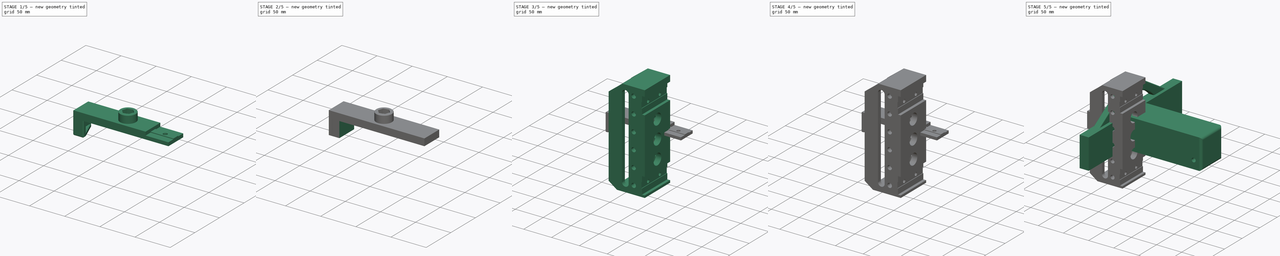
[diagram: build sequence overview — one tinted view per stage of 5, left to right]
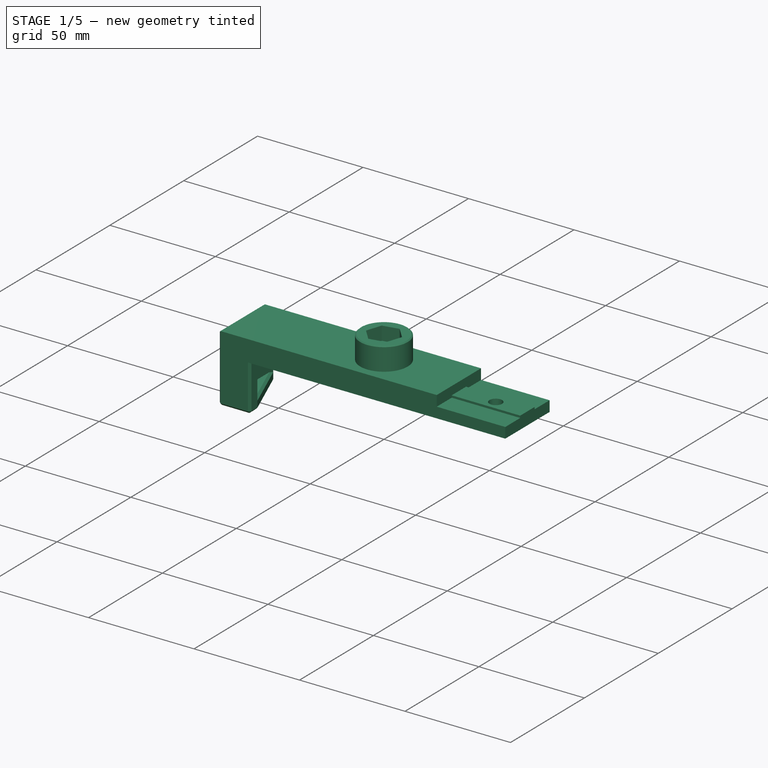
[diagram: stage 1 of 5 — iso view after this stage's code; geometry added in this stage tinted green]
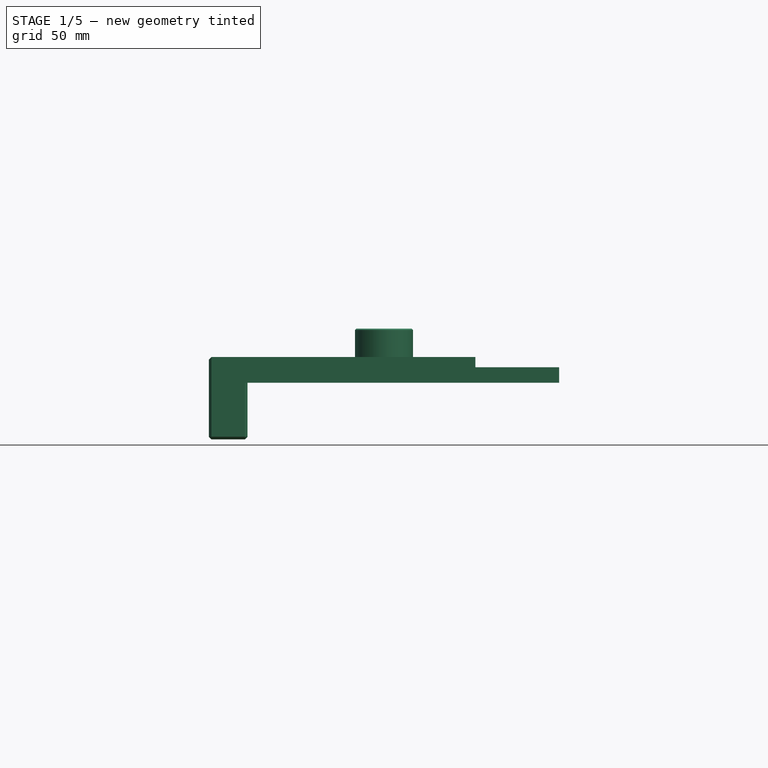
[diagram: stage 1 of 5 — front view after this stage's code; geometry added in this stage tinted green]
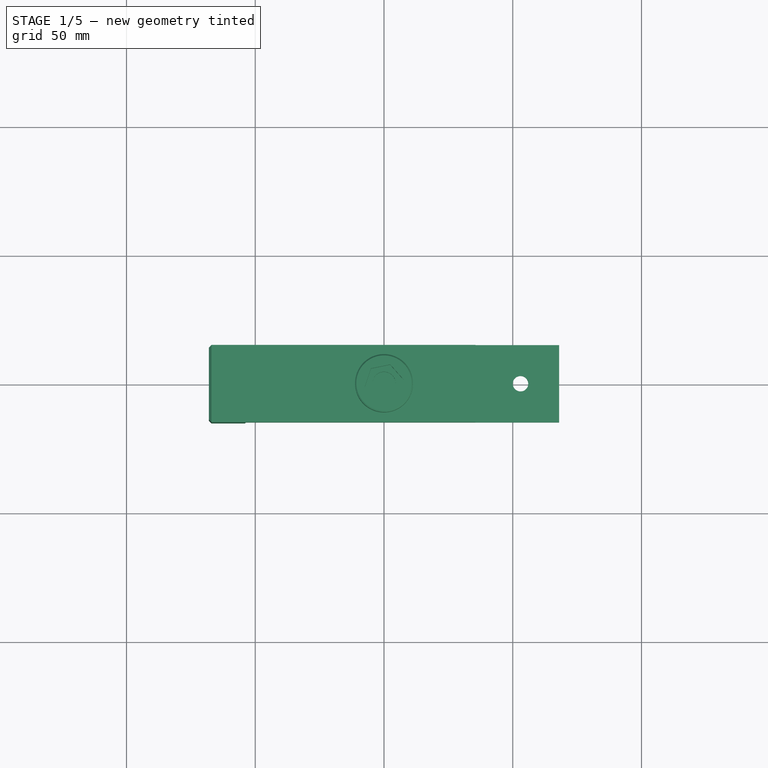
[diagram: stage 1 of 5 — top view after this stage's code; geometry added in this stage tinted green]
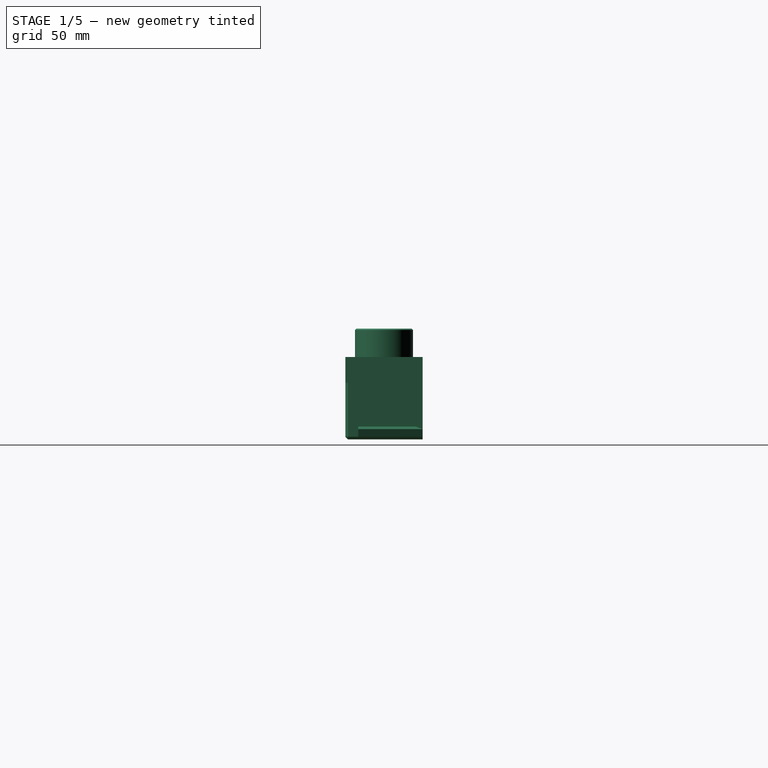
[diagram: stage 1 of 5 — right view after this stage's code; geometry added in this stage tinted green]
FCSTD DOCUMENT  (FreeCAD 1.0R38643 (Git))
Label: tablet holder
License: All rights reserved
LicenseURL: http://en.wikipedia.org/wiki/All_rights_reserved
objects: Sketcher::SketchObject×69, PartDesign::Pocket×43, PartDesign::Pad×29, PartDesign::Chamfer×27, PartDesign::Body×14, PartDesign::Fillet×7, PartDesign::Plane×3, PartDesign::PolarPattern×3, PartDesign::LinearPattern×2, Spreadsheet::Sheet×1, PartDesign::Mirrored×1
note: 485 computed .brp shape members not serialized (recipe doc carries the construction recipe); baked Part::Feature solids carry a one-line shape summary decoded from their .brp

FEATURE [Sketcher::SketchObject] Sketch022
  ArcFitTolerance = 0
  AttachmentSupport = -> [XY_Plane004]
  FullyConstrained = true
  MakeInternals = false
  MapMode = 5
  expr: Constraints[8] = Spreadsheet.supportlength
  sketch-geometry (4):
    g0: LineSegment StartX=-68 StartY=15 StartZ=0 EndX=68 EndY=15 EndZ=0
    g1: LineSegment StartX=68 StartY=15 StartZ=0 EndX=68 EndY=-15 EndZ=0
    g2: LineSegment StartX=68 StartY=-15 StartZ=0 EndX=-68 EndY=-15 EndZ=0
    g3: LineSegment StartX=-68 StartY=-15 StartZ=0 EndX=-68 EndY=15 EndZ=0
  constraints (11):
    c: Coincident(g0,g1)
    c: Coincident(g1,g2)
    c: Coincident(g2,g3)
    c: Coincident(g3,g0)
    c: Horizontal(g0)
    c: Horizontal(g2)
    c: Vertical(g1)
    c: Vertical(g3)
    c: DistanceX(g2,g2) = 136
    c: DistanceY(g3,g3) = 30
    c: Symmetric(g0,g1,g-1)
FEATURE [PartDesign::Pad] Pad007
  Direction = (0,0,1)
  Length = 10
  Length2 = 100
  Profile = -> Sketch022
  Suppressed = false
  Type = 0
FEATURE [Sketcher::SketchObject] Sketch021
  ArcFitTolerance = 0
  AttachmentSupport = -> [Pad007]
  ExternalGeometry = -> [Pad007]
  FullyConstrained = true
  MakeInternals = false
  MapMode = 5
  Placement = pos=(0,0,0) rot=(1,0,0;3.14159rad)
  sketch-geometry (4):
    g0: LineSegment StartX=-68 StartY=15 StartZ=0 EndX=-53 EndY=15 EndZ=0
    g1: LineSegment StartX=-53 StartY=15 StartZ=0 EndX=-53 EndY=-15 EndZ=0
    g2: LineSegment StartX=-53 StartY=-15 StartZ=0 EndX=-68 EndY=-15 EndZ=0
    g3: LineSegment StartX=-68 StartY=-15 StartZ=0 EndX=-68 EndY=15 EndZ=0
  constraints (11):
    c: Coincident(g0,g1)
    c: Coincident(g1,g2)
    c: Coincident(g2,g3)
    c: Coincident(g3,g0)
    c: Horizontal(g0)
    c: Horizontal(g2)
    c: Vertical(g1)
    c: Vertical(g3)
    c: Coincident(g0,g-4)
    c: PointOnObject(g1,g-5)
    c: DistanceX(g2,g2) = 15
FEATURE [PartDesign::Pad] Pad008
  BaseFeature = -> Pad007
  Direction = (0,0,-1)
  Length = 22
  Length2 = 100
  Profile = -> Sketch021
  ReferenceAxis = -> Sketch021 [N_Axis]
  Suppressed = false
  Type = 0
  expr: Length = Spreadsheet.tabletspace + 5 mm
FEATURE [Sketcher::SketchObject] Sketch023
  ArcFitTolerance = 0
  AttachmentSupport = -> [Pad008]
  ExternalGeometry = -> [Pad008]
  FullyConstrained = true
  MakeInternals = false
  MapMode = 5
  Placement = pos=(-53,0,0) rot=(0.57735,0.57735,0.57735;2.0944rad)
  expr: Constraints[9] = Spreadsheet.tabletspace
  sketch-geometry (4):
    g0: LineSegment StartX=-10 StartY=0 StartZ=0 EndX=15 EndY=0 EndZ=0
    g1: LineSegment StartX=15 StartY=0 StartZ=0 EndX=15 EndY=-17 EndZ=0
    g2: LineSegment StartX=15 StartY=-17 StartZ=0 EndX=-10 EndY=-17 EndZ=0
    g3: LineSegment StartX=-10 StartY=-17 StartZ=0 EndX=-10 EndY=0 EndZ=0
  constraints (12):
    c: Coincident(g0,g1)
    c: Coincident(g1,g2)
    c: Coincident(g2,g3)
    c: Coincident(g3,g0)
    c: Horizontal(g0)
    c: Horizontal(g2)
    c: Vertical(g1)
    c: Vertical(g3)
    c: DistanceX(g2,g2) = 25
    c: DistanceY(g3,g3) = 17
    c: DistanceY(g0,g-5) = 0
    c: DistanceX(g1,g-4) = 0
FEATURE [PartDesign::Pocket] Pocket014
  BaseFeature = -> Pad008
  Direction = (-1,0,0)
  Length = 10
  Length2 = 100
  Profile = -> Sketch023
  Suppressed = false
  Type = 0
FEATURE [Sketcher::SketchObject] Sketch020
  ArcFitTolerance = 0
  AttachmentSupport = -> [Pocket014]
  ExternalGeometry = -> [Pocket014]
  FullyConstrained = true
  MakeInternals = false
  MapMode = 5
  Placement = pos=(0,0,0) rot=(1,0,0;3.14159rad)
  expr: Constraints[0] = Spreadsheet.support_screw_diameter / 2
  sketch-geometry (1):
    g0: Circle CenterX=53 CenterY=0 CenterZ=0 NormalX=0 NormalY=0 NormalZ=1 AngleXU=0 Radius=3
  constraints (3):
    c: Radius(g0) = 3
    c: DistanceX(g0,g-6) = 15
    c: DistanceY(g0,g-6) = 15
FEATURE [Sketcher::SketchObject] Sketch024
  ArcFitTolerance = 0
  FullyConstrained = false
  MakeInternals = false
  MapMode = 5
  Placement = pos=(0,0,10) rot=(0,0,1;0rad)
  expr: Constraints[7] = Spreadsheet.bodywidth / 2
  expr: Constraints[8] = Spreadsheet.supportlength / 2 - Spreadsheet.bodywidth / 2
  sketch-geometry (4):
    g0: LineSegment StartX=68 StartY=15 StartZ=0 EndX=35.5 EndY=15 EndZ=0
    g1: LineSegment StartX=35.5 StartY=15 StartZ=0 EndX=35.5 EndY=-15 EndZ=0
    g2: LineSegment StartX=35.5 StartY=-15 StartZ=0 EndX=68 EndY=-15 EndZ=0
    g3: LineSegment StartX=68 StartY=-15 StartZ=0 EndX=68 EndY=15 EndZ=0
  constraints (10):
    c: Coincident(g0,g1)
    c: Coincident(g1,g2)
    c: Coincident(g2,g3)
    c: Coincident(g3,g0)
    c: Horizontal(g0)
    c: Horizontal(g2)
    c: Vertical(g1)
    c: DistanceX(g2,g2) = 32.5
    c: DistanceX(g-1,g0) = 35.5
    c: Symmetric(g0,g2,g-1)
FEATURE [PartDesign::Pocket] Pocket015
  BaseFeature = -> Pocket014
  Direction = (0,0,1)
  Length = 5
  Length2 = 100
  Profile = -> Sketch020
  Suppressed = false
  Type = 1
FEATURE [PartDesign::Pocket] Pocket016
  BaseFeature = -> Pocket015
  Direction = (0,0,-1)
  Length = 5
  Length2 = 100
  Profile = -> Sketch024
  Suppressed = false
  Type = 0
FEATURE [Sketcher::SketchObject] Sketch037
  ArcFitTolerance = 0
  AttachmentSupport = -> [Pocket016]
  ExternalGeometry = -> [Pocket016]
  FullyConstrained = true
  MakeInternals = false
  MapMode = 5
  Placement = pos=(0,0,0) rot=(1,0,0;3.14159rad)
  expr: Constraints[1] = Spreadsheet.support_screw_countersunk_diameter / 2
  sketch-geometry (1):
    g0: Circle CenterX=53 CenterY=0 CenterZ=0 NormalX=0 NormalY=0 NormalZ=1 AngleXU=0 Radius=5
  constraints (2):
    c: Coincident(g0,g-3)
    c: Radius(g0) = 5
FEATURE [PartDesign::Pocket] Pocket025
  BaseFeature = -> Pocket016
  Direction = (0,0,1)
  Length = 3
  Length2 = 100
  Profile = -> Sketch037
  Suppressed = false
  Type = 0
  expr: Length = Spreadsheet.support_screw_countersunk_depth
FEATURE [Spreadsheet::Sheet] Spreadsheet
  cells = A1='SupportLength; B1(supportlength)==136 mm; A2='BodyWidth; B2(bodywidth)==65 mm; A3='BodyHeight; B3(bodyheight)==65 mm; A4='SupportScrewCounterSunkDepth; B4(support_screw_countersunk_depth)==3 mm; A5='SupportScrewCounterSunkDiameter; B5(support_screw_countersunk_diameter)==10 mm; A6='SupportScrewDiameter; B6(support_screw_diameter)==6 mm; A7='StandingBodyHeight; B7(standingbodyheight)==175 mm; A8='TabletSpace; B8(tabletspace)==17 mm; A11='Model; B11='Support Width; A12='A7; B12==131 mm; A13='iPad Air 1; B13==128 mm
FEATURE [PartDesign::Chamfer] Chamfer004
  Angle = 45
  Base = -> Pocket025 [Edge13]
  BaseFeature = -> Pocket025
  ChamferType = 1
  FlipDirection = false
  Size = 10
  Size2 = 25
  SupportTransform = false
  Suppressed = false
  UseAllEdges = false
FEATURE [PartDesign::Chamfer] Chamfer005
  Angle = 45
  Base = -> Chamfer004 [Edge7,Edge10,Edge6,Edge8,Edge24,Edge9,Edge3,Edge23,Edge30,Edge29,Edge12]
  BaseFeature = -> Chamfer004
  ChamferType = 0
  FlipDirection = false
  Size = 1
  Size2 = 1
  SupportTransform = false
  Suppressed = false
  UseAllEdges = false
FEATURE [Sketcher::SketchObject] Sketch045
  ArcFitTolerance = 0
  AttachmentSupport = -> [XY_Plane009]
  FullyConstrained = true
  MakeInternals = false
  MapMode = 5
  sketch-geometry (1):
    g0: Circle CenterX=0 CenterY=0 CenterZ=0 NormalX=0 NormalY=0 NormalZ=1 AngleXU=0 Radius=15
  constraints (2):
    c: Coincident(g0,g-1)
    c: Diameter(g0) = 30
FEATURE [PartDesign::Pad] Pad015
  Direction = (0,0,1)
  Length = 10
  Length2 = 100
  Profile = -> Sketch045
  Suppressed = false
  Type = 0
FEATURE [PartDesign::Chamfer] Chamfer016
  Angle = 45
  Base = -> Pad015 [Edge3]
  BaseFeature = -> Pad015
  ChamferType = 0
  FlipDirection = false
  Size = 1
  Size2 = 1
  SupportTransform = false
  Suppressed = false
  UseAllEdges = false
FEATURE [PartDesign::Chamfer] Chamfer017
  Angle = 45
  Base = -> Chamfer016 [Edge3]
  BaseFeature = -> Chamfer016
  ChamferType = 0
  FlipDirection = false
  Size = 1
  Size2 = 1
  SupportTransform = false
  Suppressed = false
  UseAllEdges = false
FEATURE [PartDesign::Plane] DatumPlane
  AttachmentOffset = pos=(15,0,0) rot=(0,1,0;1.5708rad)
  AttachmentSupport = -> [Chamfer017]
  Length = 60
  MapMode = 45
  Placement = pos=(15,1e-16,5) rot=(0,1,0;1.5708rad)
  ResizeMode = 0
  Width = 60
FEATURE [Sketcher::SketchObject] Sketch046
  ArcFitTolerance = 0
  AttachmentSupport = -> [DatumPlane]
  ExternalGeometry = -> [Chamfer017]
  FullyConstrained = false
  MakeInternals = false
  MapMode = 5
  Placement = pos=(15,1e-16,5) rot=(0,1,0;1.5708rad)
  sketch-geometry (4):
    g0: LineSegment StartX=-5 StartY=0.909541 StartZ=0 EndX=5 EndY=0.909541 EndZ=0
    g1: LineSegment StartX=5 StartY=0.909541 StartZ=0 EndX=5 EndY=-0.0904593 EndZ=0
    g2: LineSegment StartX=5 StartY=-0.0904593 StartZ=0 EndX=-5 EndY=-0.0904593 EndZ=0
    g3: LineSegment StartX=-5 StartY=-0.0904593 StartZ=0 EndX=-5 EndY=0.909541 EndZ=0
  constraints (11):
    c: Coincident(g0,g1)
    c: Coincident(g1,g2)
    c: Coincident(g2,g3)
    c: Coincident(g3,g0)
    c: Horizontal(g0)
    c: Horizontal(g2)
    c: Vertical(g1)
    c: Vertical(g3)
    c: PointOnObject(g0,g-3)
    c: PointOnObject(g1,g-4)
    c: DistanceY(g3,g3) = 1
FEATURE [PartDesign::Pocket] Pocket031
  BaseFeature = -> Chamfer017
  Direction = (-1,0,-2e-16)
  Length = 1
  Length2 = 100
  Profile = -> Sketch046
  Suppressed = false
  Type = 0
FEATURE [PartDesign::Body] Body007  label="Washer"
  AllowCompound = false
  Group = -> [Sketch041,Pad013,Sketch052,Pad017,Fillet,Mirrored002,Sketch053,Pocket034,Fillet003,Chamfer019,Chamfer020,Chamfer021,Chamfer022]
  Origin = -> Origin007
  Tip = -> Chamfer022
FEATURE [PartDesign::Chamfer] Chamfer023
  Angle = 45
  Base = -> Pocket031 [Edge4,Edge2]
  BaseFeature = -> Pocket031
  ChamferType = 0
  FlipDirection = false
  Size = 0.95
  Size2 = 1
  SupportTransform = false
  Suppressed = false
  UseAllEdges = false
FEATURE [PartDesign::PolarPattern] PolarPattern
  Angle = 360
  Axis = -> Z_Axis009
  BaseFeature = -> Chamfer023
  Mode = 0
  Occurrences = 12
  Offset = 120
  Originals = -> [Chamfer023,Pocket031]
  Suppressed = false
  TransformMode = 0
FEATURE [Sketcher::SketchObject] Sketch054
  ArcFitTolerance = 0
  AttachmentSupport = -> [PolarPattern]
  FullyConstrained = true
  MakeInternals = false
  MapMode = 5
  Placement = pos=(0,0,10) rot=(0,0,1;0rad)
  sketch-geometry (1):
    g0: Circle CenterX=0 CenterY=0 CenterZ=0 NormalX=0 NormalY=0 NormalZ=1 AngleXU=0 Radius=11.25
  constraints (2):
    c: Coincident(g0,g-1)
    c: Radius(g0) = 11.25
FEATURE [PartDesign::Pad] Pad018
  BaseFeature = -> PolarPattern
  Direction = (0,0,1)
  Length = 11
  Length2 = 100
  Profile = -> Sketch054
  Suppressed = false
  Type = 0
FEATURE [Sketcher::SketchObject] Sketch055
  ArcFitTolerance = 0
  AttachmentSupport = -> [Pad018]
  FullyConstrained = false
  MakeInternals = false
  MapMode = 5
  Placement = pos=(0,0,21) rot=(0,0,1;0rad)
  sketch-geometry (7):
    g0: LineSegment StartX=5.04775 StartY=-5.69079 StartZ=0 EndX=7.45225 EndY=1.52608 EndZ=0
    g1: LineSegment StartX=7.45225 StartY=1.52608 StartZ=0 EndX=2.4045 EndY=7.21688 EndZ=0
    g2: LineSegment StartX=2.4045 StartY=7.21688 StartZ=0 EndX=-5.04775 EndY=5.69079 EndZ=0
    g3: LineSegment StartX=-5.04775 StartY=5.69079 StartZ=0 EndX=-7.45225 EndY=-1.52608 EndZ=0
    g4: LineSegment StartX=-7.45225 StartY=-1.52608 StartZ=0 EndX=-2.4045 EndY=-7.21688 EndZ=0
    g5: LineSegment StartX=-2.4045 StartY=-7.21688 StartZ=0 EndX=5.04775 EndY=-5.69079 EndZ=0
    g6: Circle [constr] CenterX=0 CenterY=0 CenterZ=0 NormalX=0 NormalY=0 NormalZ=1 AngleXU=0 Radius=7.6069
  constraints (15):
    c: Coincident(g0,g1)
    c: Coincident(g1,g2)
    c: Coincident(g2,g3)
    c: Coincident(g3,g4)
    c: Coincident(g4,g5)
    c: Coincident(g5,g0)
    c: Equal(g0, g1-g5) x5
    c: PointOnObject(g0,g6)
    c: PointOnObject(g1,g6)
    c: PointOnObject(g2,g6)
    c: PointOnObject(g3,g6)
    c: PointOnObject(g4,g6)
    c: PointOnObject(g5,g6)
    c: Coincident(g6,g-1)
    c: DistanceX(g3,g0) = 12.5
FEATURE [PartDesign::Pocket] Pocket035
  BaseFeature = -> Pad018
  Direction = (0,0,-1)
  Length = 6.5
  Length2 = 100
  Profile = -> Sketch055
  Suppressed = false
  Type = 0
FEATURE [PartDesign::Plane] DatumPlane001
  AttachmentSupport = -> [Pocket035]
  Length = 60
  MapMode = 5
  Placement = pos=(0,0,21) rot=(0,0,1;0rad)
  ResizeMode = 0
  Width = 60
FEATURE [Sketcher::SketchObject] Sketch056
  ArcFitTolerance = 0
  AttachmentSupport = -> [DatumPlane001]
  FullyConstrained = true
  MakeInternals = false
  MapMode = 5
  Placement = pos=(0,0,21) rot=(0,0,1;0rad)
  sketch-geometry (1):
    g0: Circle CenterX=0 CenterY=0 CenterZ=0 NormalX=0 NormalY=0 NormalZ=1 AngleXU=0 Radius=4.5
  constraints (2):
    c: Coincident(g0,g-1)
    c: Radius(g0) = 4.5
FEATURE [PartDesign::Pocket] Pocket036
  BaseFeature = -> Pocket035
  Direction = (0,0,-1)
  Length = 25.5
  Length2 = 100
  Profile = -> Sketch056
  Suppressed = false
  Type = 1
FEATURE [Sketcher::SketchObject] Sketch078
  ArcFitTolerance = 0
  AttachmentSupport = -> [Chamfer005]
  ExternalGeometry = -> [Sketch024]
  FullyConstrained = true
  MakeInternals = false
  MapMode = 5
  Placement = pos=(0,0,5) rot=(0,0,1;0rad)
  expr: Constraints[8] = Spreadsheet.bodywidth / 2
  sketch-geometry (4):
    g0: LineSegment StartX=68 StartY=4.875 StartZ=0 EndX=35.5 EndY=4.875 EndZ=0
    g1: LineSegment StartX=35.5 StartY=4.875 StartZ=0 EndX=35.5 EndY=-4.875 EndZ=0
    g2: LineSegment StartX=35.5 StartY=-4.875 StartZ=0 EndX=68 EndY=-4.875 EndZ=0
    g3: LineSegment StartX=68 StartY=-4.875 StartZ=0 EndX=68 EndY=4.875 EndZ=0
  constraints (11):
    c: Coincident(g0,g1)
    c: Coincident(g1,g2)
    c: Coincident(g2,g3)
    c: Coincident(g3,g0)
    c: Horizontal(g0)
    c: Horizontal(g2)
    c: Vertical(g1)
    c: PointOnObject(g0,g-3)
    c: DistanceX(g2,g2) = 32.5
    c: Distance(g3,g3) = 9.75
    c: Symmetric(g0,g2,g-1)
FEATURE [PartDesign::Pad] Pad029
  BaseFeature = -> Chamfer005
  Direction = (0,0,1)
  Length = 1
  Length2 = 10
  Profile = -> Sketch078
  ReferenceAxis = -> Sketch078 [N_Axis]
  Suppressed = false
  Type = 0
FEATURE [PartDesign::Body] Body003  label="Bottom Left"
  AllowCompound = false
  Group = -> [Sketch017,Pad005,Sketch016,Pad006,Sketch018,Pocket011,Sketch015,Sketch019,Pocket012,Pocket013,Sketch038,Pocket026,Chamfer006,Chamfer007,Sketch077,Pad028,Pad032,Sketch081,Pocket048]
  Origin = -> Origin003
  Tip = -> Pocket048
FEATURE [PartDesign::Pad] Pad033
  BaseFeature = -> Pad029
  Direction = (0,0,1)
  Length = 1
  Length2 = 10
  Profile = -> Sketch078
  ReferenceAxis = -> Sketch078 [N_Axis]
  Suppressed = false
  Type = 0
FEATURE [PartDesign::Body] Body006  label="Top Left"
  AllowCompound = false
  Group = -> [Sketch033,Pad012,Sketch032,Pad011,Sketch030,Pocket020,Sketch031,Sketch034,Pocket021,Pocket022,Sketch040,Pocket028,Chamfer,Chamfer010,Sketch080,Pad031,Sketch084,Pocket051]
  Origin = -> Origin006
  Tip = -> Pocket051
FEATURE [PartDesign::Chamfer] Chamfer036
  Angle = 45
  Base = -> Pocket036 [Edge208]
  BaseFeature = -> Pocket036
  ChamferType = 0
  FlipDirection = false
  Size = 0.5
  Size2 = 1
  SupportTransform = false
  Suppressed = false
  UseAllEdges = false
FEATURE [PartDesign::Body] Body009  label="Knob"
  AllowCompound = false
  Group = -> [Sketch045,Pad015,Chamfer016,Chamfer017,DatumPlane,Sketch046,Pocket031,Chamfer023,PolarPattern,Sketch054,Pad018,Sketch055,Pocket035,DatumPlane001,Sketch056,Pocket036,Chamfer036]
  Origin = -> Origin009
  Tip = -> Chamfer036
FEATURE [PartDesign::Pocket] Pocket052
  BaseFeature = -> Pad033
  Direction = (0,0,-1)
  Length = 13
  Length2 = 5
  Profile = -> Sketch082
  ReferenceAxis = -> Sketch082 [N_Axis]
  Suppressed = false
  Type = 1
FEATURE [Sketcher::SketchObject] Sketch085
  ArcFitTolerance = 1e-06
  AttachmentSupport = -> [Pocket052]
  ExternalGeometry = -> [Sketch020]
  FullyConstrained = true
  MakeInternals = false
  MapMode = 5
  Placement = pos=(0,0,5) rot=(1,0,0;3.14159rad)
  sketch-geometry (1):
    g0: Circle CenterX=53 CenterY=0 CenterZ=0 NormalX=0 NormalY=0 NormalZ=1 AngleXU=0 Radius=3
  constraints (2):
    c: Coincident(g0,g-3)
    c: Equal(g0,g-3)
FEATURE [PartDesign::Pocket] Pocket053
  BaseFeature = -> Pocket052
  Direction = (0,0,1)
  Length = 5
  Length2 = 5
  Profile = -> Sketch085
  ReferenceAxis = -> Sketch085 [N_Axis]
  Suppressed = false
  Type = 0
FEATURE [PartDesign::Body] Body004  label="Bottom Right"
  AllowCompound = false
  Group = -> [Sketch022,Pad007,Sketch021,Pad008,Sketch023,Pocket014,Sketch020,Sketch024,Pocket015,Pocket016,Sketch037,Pocket025,Chamfer004,Chamfer005,Sketch078,Pad029,Pad033,Sketch082,Pocket052,Sketch085,Pocket053]
  Origin = -> Origin004
  Tip = -> Pocket053
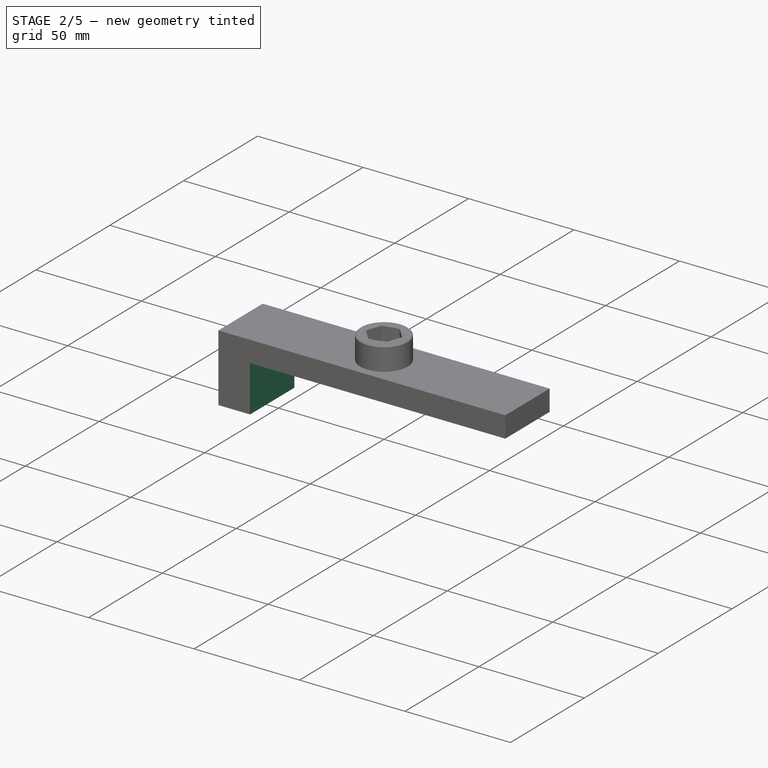
[diagram: stage 2 of 5 — iso view after this stage's code; geometry added in this stage tinted green]
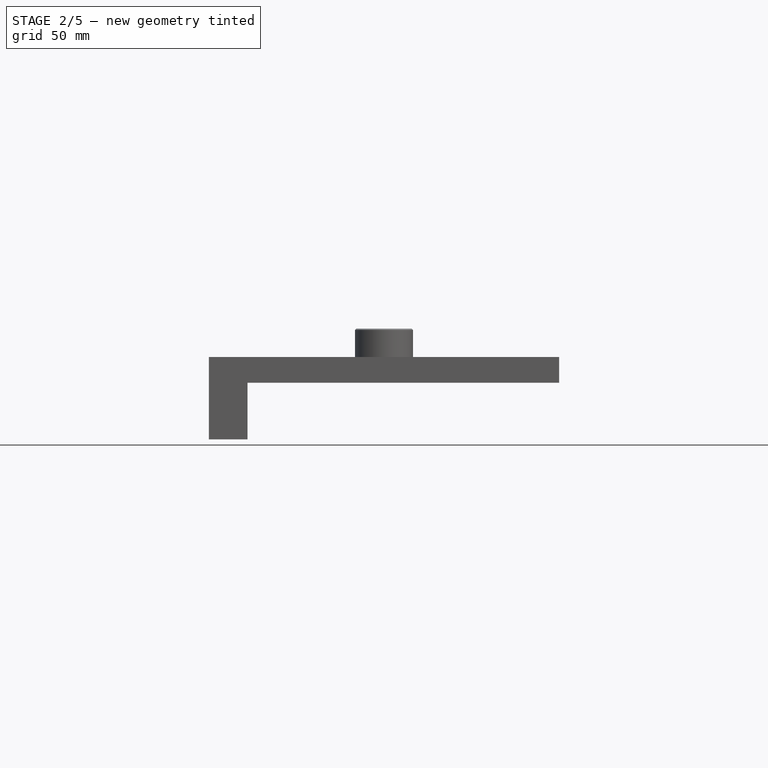
[diagram: stage 2 of 5 — front view after this stage's code; geometry added in this stage tinted green]
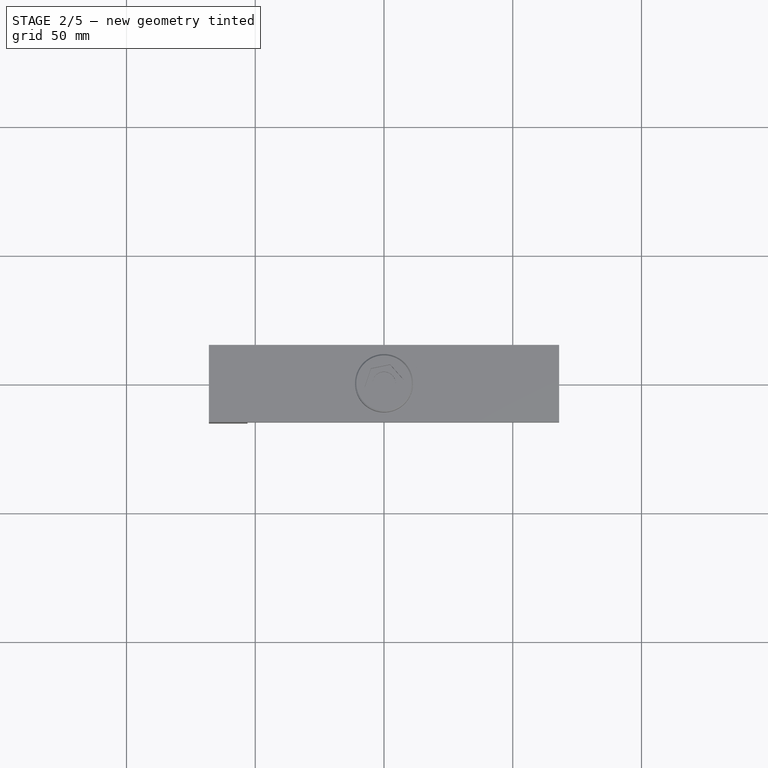
[diagram: stage 2 of 5 — top view after this stage's code; geometry added in this stage tinted green]
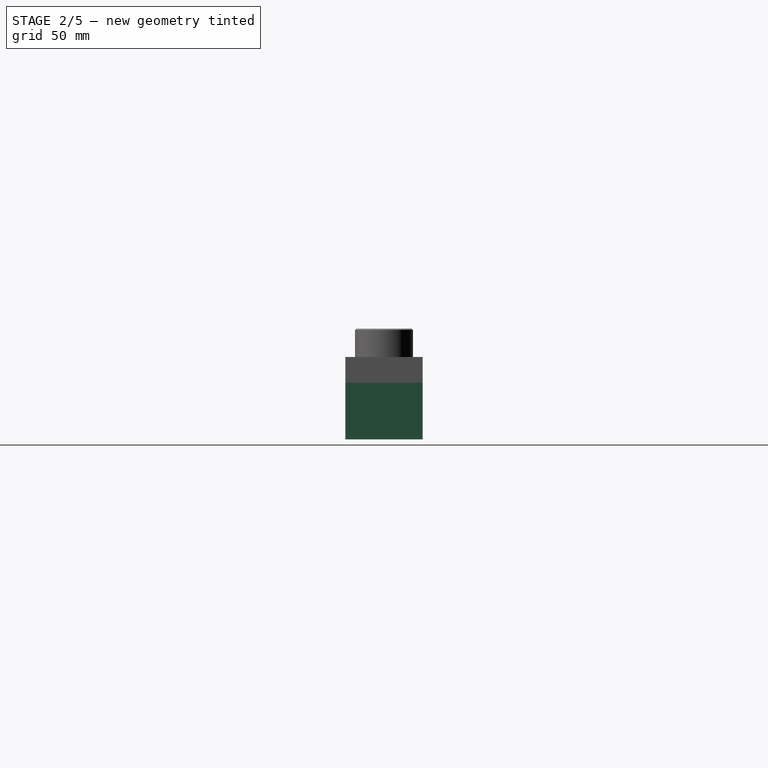
[diagram: stage 2 of 5 — right view after this stage's code; geometry added in this stage tinted green]
FEATURE [Sketcher::SketchObject] Sketch017
  ArcFitTolerance = 0
  AttachmentSupport = -> [XY_Plane003]
  FullyConstrained = true
  MakeInternals = false
  MapMode = 5
  expr: Constraints[8] = Spreadsheet.supportlength
  sketch-geometry (4):
    g0: LineSegment StartX=-68 StartY=15 StartZ=0 EndX=68 EndY=15 EndZ=0
    g1: LineSegment StartX=68 StartY=15 StartZ=0 EndX=68 EndY=-15 EndZ=0
    g2: LineSegment StartX=68 StartY=-15 StartZ=0 EndX=-68 EndY=-15 EndZ=0
    g3: LineSegment StartX=-68 StartY=-15 StartZ=0 EndX=-68 EndY=15 EndZ=0
  constraints (11):
    c: Coincident(g0,g1)
    c: Coincident(g1,g2)
    c: Coincident(g2,g3)
    c: Coincident(g3,g0)
    c: Horizontal(g0)
    c: Horizontal(g2)
    c: Vertical(g1)
    c: Vertical(g3)
    c: DistanceX(g2,g2) = 136
    c: DistanceY(g3,g3) = 30
    c: Symmetric(g0,g1,g-1)
FEATURE [PartDesign::Pad] Pad005
  Direction = (0,0,1)
  Length = 10
  Length2 = 100
  Profile = -> Sketch017
  Suppressed = false
  Type = 0
FEATURE [Sketcher::SketchObject] Sketch016
  ArcFitTolerance = 0
  AttachmentSupport = -> [Pad005]
  ExternalGeometry = -> [Pad005]
  FullyConstrained = true
  MakeInternals = false
  MapMode = 5
  Placement = pos=(0,0,0) rot=(1,0,0;3.14159rad)
  sketch-geometry (4):
    g0: LineSegment StartX=-68 StartY=15 StartZ=0 EndX=-53 EndY=15 EndZ=0
    g1: LineSegment StartX=-53 StartY=15 StartZ=0 EndX=-53 EndY=-15 EndZ=0
    g2: LineSegment StartX=-53 StartY=-15 StartZ=0 EndX=-68 EndY=-15 EndZ=0
    g3: LineSegment StartX=-68 StartY=-15 StartZ=0 EndX=-68 EndY=15 EndZ=0
  constraints (11):
    c: Coincident(g0,g1)
    c: Coincident(g1,g2)
    c: Coincident(g2,g3)
    c: Coincident(g3,g0)
    c: Horizontal(g0)
    c: Horizontal(g2)
    c: Vertical(g1)
    c: Vertical(g3)
    c: Coincident(g0,g-4)
    c: PointOnObject(g1,g-5)
    c: DistanceX(g2,g2) = 15
FEATURE [PartDesign::Pad] Pad006
  BaseFeature = -> Pad005
  Direction = (0,0,-1)
  Length = 22
  Length2 = 100
  Profile = -> Sketch016
  ReferenceAxis = -> Sketch016 [N_Axis]
  Suppressed = false
  Type = 0
  expr: Length = Spreadsheet.tabletspace + 5 mm
FEATURE [Sketcher::SketchObject] Sketch027
  ArcFitTolerance = 0
  AttachmentSupport = -> [XY_Plane005]
  FullyConstrained = true
  MakeInternals = false
  MapMode = 5
  expr: Constraints[8] = Spreadsheet.supportlength
  sketch-geometry (4):
    g0: LineSegment StartX=-68 StartY=15 StartZ=0 EndX=68 EndY=15 EndZ=0
    g1: LineSegment StartX=68 StartY=15 StartZ=0 EndX=68 EndY=-15 EndZ=0
    g2: LineSegment StartX=68 StartY=-15 StartZ=0 EndX=-68 EndY=-15 EndZ=0
    g3: LineSegment StartX=-68 StartY=-15 StartZ=0 EndX=-68 EndY=15 EndZ=0
  constraints (11):
    c: Coincident(g0,g1)
    c: Coincident(g1,g2)
    c: Coincident(g2,g3)
    c: Coincident(g3,g0)
    c: Horizontal(g0)
    c: Horizontal(g2)
    c: Vertical(g1)
    c: Vertical(g3)
    c: DistanceX(g2,g2) = 136
    c: DistanceY(g3,g3) = 30
    c: Symmetric(g0,g1,g-1)
FEATURE [PartDesign::Pad] Pad009
  Direction = (0,0,1)
  Length = 10
  Length2 = 100
  Profile = -> Sketch027
  Suppressed = false
  Type = 0
FEATURE [Sketcher::SketchObject] Sketch026
  ArcFitTolerance = 0
  AttachmentSupport = -> [Pad009]
  ExternalGeometry = -> [Pad009]
  FullyConstrained = true
  MakeInternals = false
  MapMode = 5
  Placement = pos=(0,0,0) rot=(1,0,0;3.14159rad)
  sketch-geometry (4):
    g0: LineSegment StartX=-68 StartY=15 StartZ=0 EndX=-53 EndY=15 EndZ=0
    g1: LineSegment StartX=-53 StartY=15 StartZ=0 EndX=-53 EndY=-15 EndZ=0
    g2: LineSegment StartX=-53 StartY=-15 StartZ=0 EndX=-68 EndY=-15 EndZ=0
    g3: LineSegment StartX=-68 StartY=-15 StartZ=0 EndX=-68 EndY=15 EndZ=0
  constraints (11):
    c: Coincident(g0,g1)
    c: Coincident(g1,g2)
    c: Coincident(g2,g3)
    c: Coincident(g3,g0)
    c: Horizontal(g0)
    c: Horizontal(g2)
    c: Vertical(g1)
    c: Vertical(g3)
    c: Coincident(g0,g-4)
    c: PointOnObject(g1,g-5)
    c: DistanceX(g2,g2) = 15
FEATURE [PartDesign::Pad] Pad010
  BaseFeature = -> Pad009
  Direction = (0,0,-1)
  Length = 22
  Length2 = 100
  Profile = -> Sketch026
  ReferenceAxis = -> Sketch026 [N_Axis]
  Suppressed = false
  Type = 0
  expr: Length = Spreadsheet.tabletspace + 5 mm
FEATURE [Sketcher::SketchObject] Sketch028
  ArcFitTolerance = 0
  AttachmentSupport = -> [Pad010]
  ExternalGeometry = -> [Pad010]
  FullyConstrained = true
  MakeInternals = false
  MapMode = 5
  Placement = pos=(-53,0,0) rot=(0.57735,0.57735,0.57735;2.0944rad)
  expr: Constraints[9] = Spreadsheet.tabletspace
  sketch-geometry (4):
    g0: LineSegment StartX=-15 StartY=0 StartZ=0 EndX=15 EndY=0 EndZ=0
    g1: LineSegment StartX=15 StartY=0 StartZ=0 EndX=15 EndY=-17 EndZ=0
    g2: LineSegment StartX=15 StartY=-17 StartZ=0 EndX=-15 EndY=-17 EndZ=0
    g3: LineSegment StartX=-15 StartY=-17 StartZ=0 EndX=-15 EndY=0 EndZ=0
  constraints (12):
    c: Coincident(g0,g1)
    c: Coincident(g1,g2)
    c: Coincident(g2,g3)
    c: Coincident(g3,g0)
    c: Horizontal(g0)
    c: Horizontal(g2)
    c: Vertical(g1)
    c: Vertical(g3)
    c: DistanceX(g2,g2) = 30
    c: DistanceY(g3,g3) = 17
    c: DistanceX(g-5,g0) = 0
    c: DistanceY(g0,g-5) = 0
FEATURE [PartDesign::Pocket] Pocket017
  BaseFeature = -> Pad010
  Direction = (-1,0,0)
  Length = 10
  Length2 = 100
  Profile = -> Sketch028
  Suppressed = false
  Type = 0
FEATURE [Sketcher::SketchObject] Sketch025
  ArcFitTolerance = 0
  AttachmentSupport = -> [Pocket017]
  ExternalGeometry = -> [Pocket017]
  FullyConstrained = true
  MakeInternals = false
  MapMode = 5
  Placement = pos=(0,0,0) rot=(1,0,0;3.14159rad)
  expr: Constraints[0] = Spreadsheet.support_screw_diameter / 2
  sketch-geometry (1):
    g0: Circle CenterX=53 CenterY=0 CenterZ=0 NormalX=0 NormalY=0 NormalZ=1 AngleXU=0 Radius=3
  constraints (3):
    c: Radius(g0) = 3
    c: DistanceX(g0,g-6) = 15
    c: DistanceY(g0,g-6) = 15
FEATURE [Sketcher::SketchObject] Sketch029
  ArcFitTolerance = 0
  FullyConstrained = false
  MakeInternals = false
  MapMode = 5
  Placement = pos=(0,0,10) rot=(0,0,1;0rad)
  expr: Constraints[7] = Spreadsheet.bodywidth / 2
  expr: Constraints[8] = Spreadsheet.supportlength / 2 - Spreadsheet.bodywidth / 2
  sketch-geometry (4):
    g0: LineSegment StartX=68 StartY=15 StartZ=0 EndX=35.5 EndY=15 EndZ=0
    g1: LineSegment StartX=35.5 StartY=15 StartZ=0 EndX=35.5 EndY=-15 EndZ=0
    g2: LineSegment StartX=35.5 StartY=-15 StartZ=0 EndX=68 EndY=-15 EndZ=0
    g3: LineSegment StartX=68 StartY=-15 StartZ=0 EndX=68 EndY=15 EndZ=0
  constraints (10):
    c: Coincident(g0,g1)
    c: Coincident(g1,g2)
    c: Coincident(g2,g3)
    c: Coincident(g3,g0)
    c: Horizontal(g0)
    c: Horizontal(g2)
    c: Vertical(g1)
    c: DistanceX(g2,g2) = 32.5
    c: DistanceX(g-1,g0) = 35.5
    c: Symmetric(g0,g2,g-1)
FEATURE [PartDesign::Pocket] Pocket018
  BaseFeature = -> Pocket017
  Direction = (0,0,1)
  Length = 5
  Length2 = 100
  Profile = -> Sketch025
  Suppressed = false
  Type = 1
FEATURE [PartDesign::Pocket] Pocket019
  BaseFeature = -> Pocket018
  Direction = (0,0,-1)
  Length = 5
  Length2 = 100
  Profile = -> Sketch029
  Suppressed = false
  Type = 0
FEATURE [Sketcher::SketchObject] Sketch033
  ArcFitTolerance = 0
  AttachmentSupport = -> [XY_Plane006]
  FullyConstrained = true
  MakeInternals = false
  MapMode = 5
  expr: .Constraints.Length = Spreadsheet.supportlength
  sketch-geometry (4):
    g0: LineSegment StartX=-68 StartY=15 StartZ=0 EndX=68 EndY=15 EndZ=0
    g1: LineSegment StartX=68 StartY=15 StartZ=0 EndX=68 EndY=-15 EndZ=0
    g2: LineSegment StartX=68 StartY=-15 StartZ=0 EndX=-68 EndY=-15 EndZ=0
    g3: LineSegment StartX=-68 StartY=-15 StartZ=0 EndX=-68 EndY=15 EndZ=0
  constraints (11):
    c: Coincident(g0,g1)
    c: Coincident(g1,g2)
    c: Coincident(g2,g3)
    c: Coincident(g3,g0)
    c: Horizontal(g0)
    c: Horizontal(g2)
    c: Vertical(g1)
    c: Vertical(g3)
    c: DistanceX(g2,g2) = 136  'Length'
    c: DistanceY(g3,g3) = 30
    c: Symmetric(g0,g1,g-1)
FEATURE [PartDesign::Pad] Pad012
  Direction = (0,0,1)
  Length = 10
  Length2 = 100
  Profile = -> Sketch033
  Suppressed = false
  Type = 0
FEATURE [Sketcher::SketchObject] Sketch032
  ArcFitTolerance = 0
  AttachmentSupport = -> [Pad012]
  ExternalGeometry = -> [Pad012]
  FullyConstrained = true
  MakeInternals = false
  MapMode = 5
  Placement = pos=(0,0,0) rot=(1,0,0;3.14159rad)
  sketch-geometry (4):
    g0: LineSegment StartX=-68 StartY=15 StartZ=0 EndX=-53 EndY=15 EndZ=0
    g1: LineSegment StartX=-53 StartY=15 StartZ=0 EndX=-53 EndY=-15 EndZ=0
    g2: LineSegment StartX=-53 StartY=-15 StartZ=0 EndX=-68 EndY=-15 EndZ=0
    g3: LineSegment StartX=-68 StartY=-15 StartZ=0 EndX=-68 EndY=15 EndZ=0
  constraints (11):
    c: Coincident(g0,g1)
    c: Coincident(g1,g2)
    c: Coincident(g2,g3)
    c: Coincident(g3,g0)
    c: Horizontal(g0)
    c: Horizontal(g2)
    c: Vertical(g1)
    c: Vertical(g3)
    c: Coincident(g0,g-4)
    c: PointOnObject(g1,g-5)
    c: DistanceX(g2,g2) = 15
FEATURE [PartDesign::Pad] Pad011
  BaseFeature = -> Pad012
  Direction = (0,0,-1)
  Length = 22
  Length2 = 100
  Profile = -> Sketch032
  ReferenceAxis = -> Sketch032 [N_Axis]
  Suppressed = false
  Type = 0
  expr: Length = Spreadsheet.tabletspace + 5 mm
FEATURE [Sketcher::SketchObject] Sketch030
  ArcFitTolerance = 0
  AttachmentSupport = -> [Pad011]
  ExternalGeometry = -> [Pad011]
  FullyConstrained = true
  MakeInternals = false
  MapMode = 5
  Placement = pos=(-53,0,0) rot=(0.57735,0.57735,0.57735;2.0944rad)
  expr: Constraints[9] = Spreadsheet.tabletspace
  sketch-geometry (4):
    g0: LineSegment StartX=-15 StartY=0 StartZ=0 EndX=15 EndY=0 EndZ=0
    g1: LineSegment StartX=15 StartY=0 StartZ=0 EndX=15 EndY=-17 EndZ=0
    g2: LineSegment StartX=15 StartY=-17 StartZ=0 EndX=-15 EndY=-17 EndZ=0
    g3: LineSegment StartX=-15 StartY=-17 StartZ=0 EndX=-15 EndY=0 EndZ=0
  constraints (12):
    c: Coincident(g0,g1)
    c: Coincident(g1,g2)
    c: Coincident(g2,g3)
    c: Coincident(g3,g0)
    c: Horizontal(g0)
    c: Horizontal(g2)
    c: Vertical(g1)
    c: Vertical(g3)
    c: DistanceX(g2,g2) = 30
    c: DistanceY(g3,g3) = 17
    c: DistanceY(g0,g-5) = 0
    c: DistanceX(g1,g-4) = 0
FEATURE [PartDesign::Pocket] Pocket020
  BaseFeature = -> Pad011
  Direction = (-1,0,0)
  Length = 10
  Length2 = 100
  Profile = -> Sketch030
  Suppressed = false
  Type = 0
FEATURE [Sketcher::SketchObject] Sketch031
  ArcFitTolerance = 0
  AttachmentSupport = -> [Pocket020]
  ExternalGeometry = -> [Pocket020]
  FullyConstrained = true
  MakeInternals = false
  MapMode = 5
  Placement = pos=(0,0,0) rot=(1,0,0;3.14159rad)
  expr: Constraints[0] = Spreadsheet.support_screw_diameter / 2
  sketch-geometry (1):
    g0: Circle CenterX=53 CenterY=0 CenterZ=0 NormalX=0 NormalY=0 NormalZ=1 AngleXU=0 Radius=3
  constraints (3):
    c: Radius(g0) = 3
    c: DistanceX(g0,g-6) = 15
    c: DistanceY(g0,g-6) = 15
FEATURE [Sketcher::SketchObject] Sketch034
  ArcFitTolerance = 0
  FullyConstrained = true
  MakeInternals = false
  MapMode = 5
  Placement = pos=(0,0,10) rot=(0,0,1;0rad)
  expr: Constraints[7] = Spreadsheet.bodywidth / 2
  expr: Constraints[8] = Spreadsheet.supportlength / 2 - Spreadsheet.bodywidth / 2
  sketch-geometry (4):
    g0: LineSegment StartX=68 StartY=15 StartZ=0 EndX=35.5 EndY=15 EndZ=0
    g1: LineSegment StartX=35.5 StartY=15 StartZ=0 EndX=35.5 EndY=-15 EndZ=0
    g2: LineSegment StartX=35.5 StartY=-15 StartZ=0 EndX=68 EndY=-15 EndZ=0
    g3: LineSegment StartX=68 StartY=-15 StartZ=0 EndX=68 EndY=15 EndZ=0
  constraints (11):
    c: Coincident(g0,g1)
    c: Coincident(g1,g2)
    c: Coincident(g2,g3)
    c: Coincident(g3,g0)
    c: Horizontal(g0)
    c: Horizontal(g2)
    c: Vertical(g1)
    c: DistanceX(g2,g2) = 32.5
    c: DistanceX(g-1,g0) = 35.5
    c: DistanceY(g3,g3) = 30
    c: Symmetric(g0,g2,g-1)
FEATURE [PartDesign::Pocket] Pocket021
  BaseFeature = -> Pocket020
  Direction = (0,0,1)
  Length = 5
  Length2 = 100
  Profile = -> Sketch031
  Suppressed = false
  Type = 1
FEATURE [PartDesign::Pocket] Pocket022
  BaseFeature = -> Pocket021
  Direction = (0,0,-1)
  Length = 5
  Length2 = 100
  Profile = -> Sketch034
  Suppressed = false
  Type = 0
FEATURE [Sketcher::SketchObject] Sketch039
  ArcFitTolerance = 0
  AttachmentSupport = -> [Pocket019]
  ExternalGeometry = -> [Pocket019]
  FullyConstrained = true
  MakeInternals = false
  MapMode = 5
  Placement = pos=(0,0,0) rot=(1,0,0;3.14159rad)
  expr: Constraints[1] = Spreadsheet.support_screw_countersunk_diameter / 2
  sketch-geometry (1):
    g0: Circle CenterX=53 CenterY=0 CenterZ=0 NormalX=0 NormalY=0 NormalZ=1 AngleXU=0 Radius=5
  constraints (2):
    c: Coincident(g0,g-3)
    c: Radius(g0) = 5
FEATURE [PartDesign::Pocket] Pocket027
  BaseFeature = -> Pocket019
  Direction = (0,0,1)
  Length = 3
  Length2 = 100
  Profile = -> Sketch039
  Suppressed = false
  Type = 0
  expr: Length = Spreadsheet.support_screw_countersunk_depth
FEATURE [Sketcher::SketchObject] Sketch040
  ArcFitTolerance = 0
  AttachmentSupport = -> [Pocket022]
  ExternalGeometry = -> [Sketch031]
  FullyConstrained = true
  MakeInternals = false
  MapMode = 5
  Placement = pos=(0,0,0) rot=(1,0,0;3.14159rad)
  expr: Constraints[1] = Spreadsheet.support_screw_countersunk_diameter / 2
  sketch-geometry (1):
    g0: Circle CenterX=53 CenterY=0 CenterZ=0 NormalX=0 NormalY=0 NormalZ=1 AngleXU=0 Radius=5
  constraints (2):
    c: Coincident(g0,g-3)
    c: Radius(g0) = 5
FEATURE [PartDesign::Pocket] Pocket028
  BaseFeature = -> Pocket022
  Direction = (0,0,1)
  Length = 3
  Length2 = 100
  Profile = -> Sketch040
  Suppressed = false
  Type = 0
  expr: Length = Spreadsheet.support_screw_countersunk_depth
FEATURE [PartDesign::Chamfer] Chamfer008
  Angle = 45
  Base = -> Pocket027 [Edge39]
  BaseFeature = -> Pocket027
  ChamferType = 1
  FlipDirection = false
  Size = 25
  Size2 = 10
  SupportTransform = false
  Suppressed = false
  UseAllEdges = false
FEATURE [PartDesign::Chamfer] Chamfer009
  Angle = 45
  Base = -> Chamfer008 [Edge2,Edge9,Edge1,Edge7,Edge13,Edge6,Edge17,Edge18,Edge31,Edge42,Edge12,Edge26]
  BaseFeature = -> Chamfer008
  ChamferType = 0
  FlipDirection = false
  Size = 1
  Size2 = 1
  SupportTransform = false
  Suppressed = false
  UseAllEdges = false
FEATURE [PartDesign::Chamfer] Chamfer
  Angle = 45
  Base = -> Pocket028 [Edge13]
  BaseFeature = -> Pocket028
  ChamferType = 1
  FlipDirection = false
  Size = 10
  Size2 = 25
  SupportTransform = false
  Suppressed = false
  UseAllEdges = false
FEATURE [PartDesign::Chamfer] Chamfer010
  Angle = 45
  Base = -> Chamfer [Edge7,Edge10,Edge6,Edge24,Edge8,Edge9,Edge1,Edge12,Edge28,Edge29,Edge23,Edge3]
  BaseFeature = -> Chamfer
  ChamferType = 0
  FlipDirection = false
  Size = 1
  Size2 = 1
  SupportTransform = false
  Suppressed = false
  UseAllEdges = false
FEATURE [Sketcher::SketchObject] Sketch079
  ArcFitTolerance = 0
  AttachmentSupport = -> [Chamfer009]
  ExternalGeometry = -> [Sketch029]
  FullyConstrained = true
  MakeInternals = false
  MapMode = 5
  Placement = pos=(0,0,5) rot=(0,0,1;0rad)
  expr: Constraints[8] = Spreadsheet.bodywidth / 2
  sketch-geometry (4):
    g0: LineSegment StartX=68 StartY=4.875 StartZ=0 EndX=35.5 EndY=4.875 EndZ=0
    g1: LineSegment StartX=35.5 StartY=4.875 StartZ=0 EndX=35.5 EndY=-4.875 EndZ=0
    g2: LineSegment StartX=35.5 StartY=-4.875 StartZ=0 EndX=68 EndY=-4.875 EndZ=0
    g3: LineSegment StartX=68 StartY=-4.875 StartZ=0 EndX=68 EndY=4.875 EndZ=0
  constraints (11):
    c: Coincident(g0,g1)
    c: Coincident(g1,g2)
    c: Coincident(g2,g3)
    c: Coincident(g3,g0)
    c: Horizontal(g0)
    c: Horizontal(g2)
    c: Vertical(g1)
    c: PointOnObject(g0,g-3)
    c: DistanceX(g2,g2) = 32.5
    c: DistanceY(g3,g3) = 9.75
    c: Symmetric(g0,g2,g-1)
FEATURE [PartDesign::Pad] Pad030
  BaseFeature = -> Chamfer009
  Direction = (0,0,1)
  Length = 1
  Length2 = 10
  Profile = -> Sketch079
  ReferenceAxis = -> Sketch079 [N_Axis]
  Suppressed = false
  Type = 0
FEATURE [Sketcher::SketchObject] Sketch080
  ArcFitTolerance = 0
  AttachmentSupport = -> [Chamfer010]
  ExternalGeometry = -> [Chamfer010]
  FullyConstrained = true
  MakeInternals = false
  MapMode = 5
  Placement = pos=(0,0,5) rot=(0,0,1;0rad)
  expr: Constraints[8] = Spreadsheet.bodywidth / 2
  sketch-geometry (4):
    g0: LineSegment StartX=68 StartY=4.875 StartZ=0 EndX=35.5 EndY=4.875 EndZ=0
    g1: LineSegment StartX=35.5 StartY=4.875 StartZ=0 EndX=35.5 EndY=-4.875 EndZ=0
    g2: LineSegment StartX=35.5 StartY=-4.875 StartZ=0 EndX=68 EndY=-4.875 EndZ=0
    g3: LineSegment StartX=68 StartY=-4.875 StartZ=0 EndX=68 EndY=4.875 EndZ=0
  constraints (11):
    c: Coincident(g0,g1)
    c: Coincident(g1,g2)
    c: Coincident(g2,g3)
    c: Coincident(g3,g0)
    c: Horizontal(g0)
    c: Horizontal(g2)
    c: Vertical(g1)
    c: PointOnObject(g0,g-3)
    c: DistanceX(g2,g2) = 32.5
    c: DistanceY(g3,g3) = 9.75
    c: Symmetric(g0,g2,g-1)
FEATURE [PartDesign::Pad] Pad031
  BaseFeature = -> Chamfer010
  Direction = (0,0,1)
  Length = 1
  Length2 = 10
  Profile = -> Sketch080
  ReferenceAxis = -> Sketch080 [N_Axis]
  Suppressed = false
  Type = 0
FEATURE [Sketcher::SketchObject] Sketch082
  ArcFitTolerance = 0
  AttachmentSupport = -> [Pad033]
  ExternalGeometry = -> [Sketch024]
  FullyConstrained = true
  MakeInternals = false
  MapMode = 5
  Placement = pos=(0,0,5) rot=(0,0,1;0rad)
  sketch-geometry (1):
    g0: Circle CenterX=53 CenterY=0 CenterZ=0 NormalX=0 NormalY=0 NormalZ=1 AngleXU=0 Radius=3
  constraints (3):
    c: Radius(g0) = 3
    c: PointOnObject(g0,g-1)
    c: DistanceX(g0,g-3) = 15
FEATURE [PartDesign::Pad] Pad034
  BaseFeature = -> Pad030
  Direction = (0,0,1)
  Length = 1
  Length2 = 10
  Profile = -> Sketch079
  ReferenceAxis = -> Sketch079 [N_Axis]
  Suppressed = false
  Type = 0
FEATURE [Sketcher::SketchObject] Sketch083
  ArcFitTolerance = 0
  AttachmentSupport = -> [Pad034]
  ExternalGeometry = -> [Sketch029]
  FullyConstrained = true
  MakeInternals = false
  MapMode = 5
  Placement = pos=(0,0,6) rot=(0,0,1;0rad)
  sketch-geometry (1):
    g0: Circle CenterX=53 CenterY=0 CenterZ=0 NormalX=0 NormalY=0 NormalZ=1 AngleXU=0 Radius=3
  constraints (3):
    c: PointOnObject(g0,g-1)
    c: Diameter(g0) = 6
    c: DistanceX(g0,g-3) = 15
FEATURE [PartDesign::Pocket] Pocket050
  BaseFeature = -> Pad034
  Direction = (0,0,-1)
  Length = 5
  Length2 = 5
  Profile = -> Sketch083
  ReferenceAxis = -> Sketch083 [N_Axis]
  Suppressed = false
  Type = 0
FEATURE [PartDesign::Body] Body005  label="Top Right"
  AllowCompound = false
  Group = -> [Sketch027,Pad009,Sketch026,Pad010,Sketch028,Pocket017,Sketch025,Sketch029,Pocket018,Pocket019,Sketch039,Pocket027,Chamfer008,Chamfer009,Sketch079,Pad030,Pad034,Sketch083,Pocket050]
  Origin = -> Origin005
  Tip = -> Pocket050
FEATURE [Sketcher::SketchObject] Sketch084
  ArcFitTolerance = 0
  AttachmentSupport = -> [Pad031]
  ExternalGeometry = -> [Pad031]
  FullyConstrained = true
  MakeInternals = false
  MapMode = 5
  Placement = pos=(0,0,6) rot=(0,0,1;0rad)
  sketch-geometry (1):
    g0: Circle CenterX=53 CenterY=0 CenterZ=0 NormalX=0 NormalY=0 NormalZ=1 AngleXU=0 Radius=3
  constraints (3):
    c: Radius(g0) = 3
    c: PointOnObject(g0,g-1)
    c: DistanceX(g0,g-3) = 15
FEATURE [PartDesign::Pocket] Pocket051
  BaseFeature = -> Pad031
  Direction = (0,0,-1)
  Length = 5
  Length2 = 5
  Profile = -> Sketch084
  ReferenceAxis = -> Sketch084 [N_Axis]
  Suppressed = false
  Type = 0
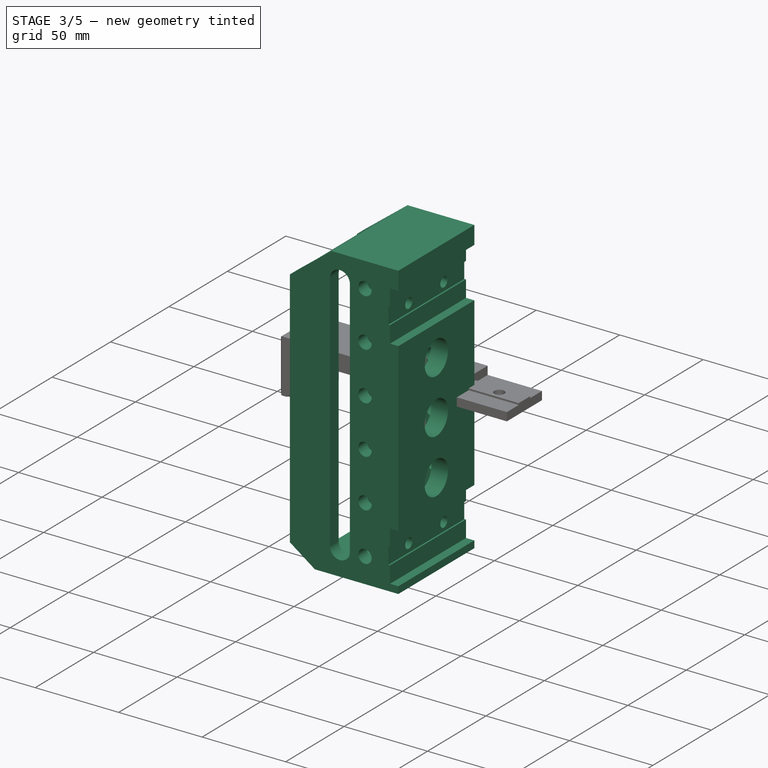
[diagram: stage 3 of 5 — iso view after this stage's code; geometry added in this stage tinted green]
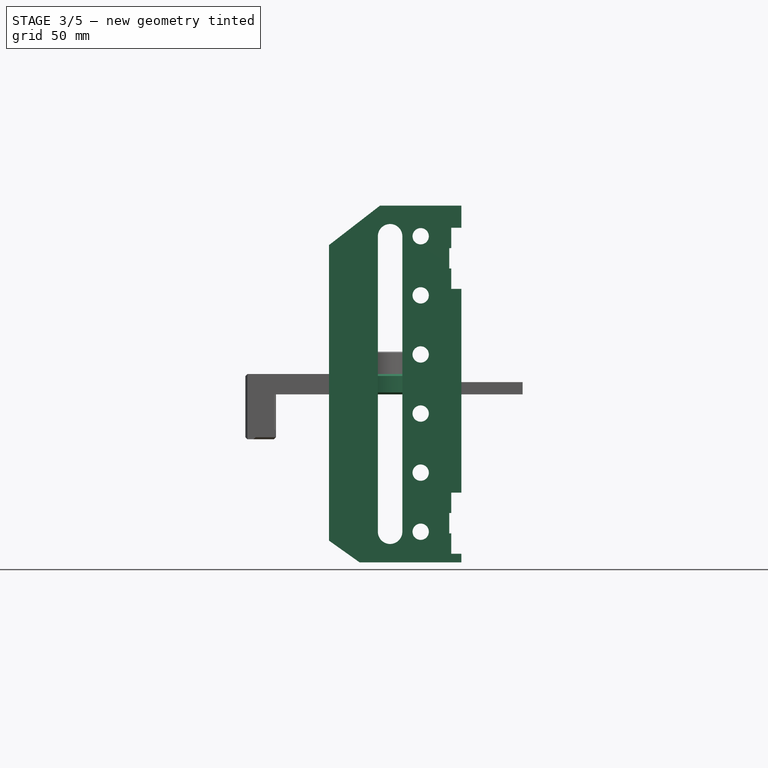
[diagram: stage 3 of 5 — front view after this stage's code; geometry added in this stage tinted green]
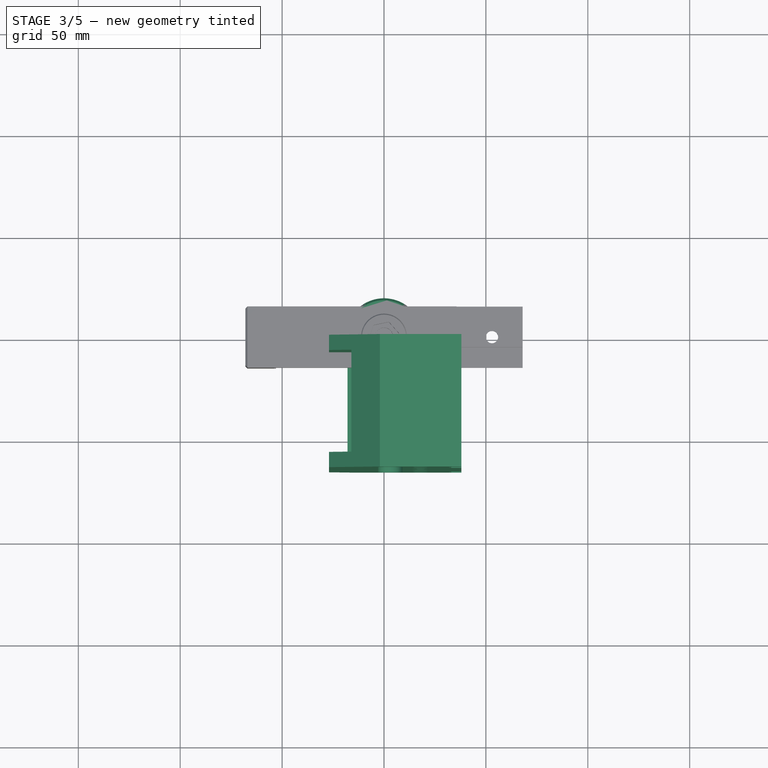
[diagram: stage 3 of 5 — top view after this stage's code; geometry added in this stage tinted green]
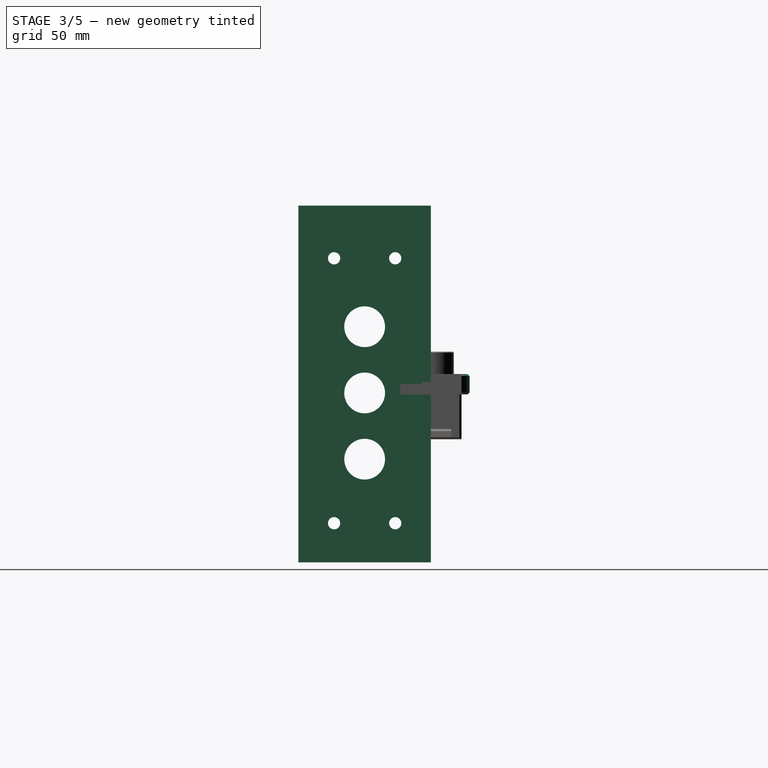
[diagram: stage 3 of 5 — right view after this stage's code; geometry added in this stage tinted green]
FEATURE [Sketcher::SketchObject] Sketch
  ArcFitTolerance = 0
  AttachmentSupport = -> [XZ_Plane]
  FullyConstrained = false
  MakeInternals = false
  MapMode = 5
  Placement = pos=(0,0,0) rot=(1,0,0;1.5708rad)
  expr: Constraints[10] = Spreadsheet.bodyheight - 15 mm
  expr: Constraints[11] = Spreadsheet.standingbodyheight
  expr: Constraints[12] = Spreadsheet.standingbodyheight - 30 mm
  expr: Constraints[13] = Spreadsheet.bodyheight - 40 mm
  sketch-geometry (6):
    g0: LineSegment StartX=-2.00309 StartY=92.6029 StartZ=0 EndX=37.9969 EndY=92.6029 EndZ=0
    g1: LineSegment StartX=37.9969 StartY=92.6029 StartZ=0 EndX=37.9969 EndY=-82.3971 EndZ=0
    g2: LineSegment StartX=37.9969 StartY=-82.3971 StartZ=0 EndX=-12.0031 EndY=-82.3971 EndZ=0
    g3: LineSegment StartX=-27.0031 StartY=-71.7402 StartZ=0 EndX=-27.0031 EndY=73.2598 EndZ=0
    g4: LineSegment StartX=-2.00309 StartY=92.6029 StartZ=0 EndX=-27.0031 EndY=73.2598 EndZ=0
    g5: LineSegment StartX=-27.0031 StartY=-71.7402 StartZ=0 EndX=-12.0031 EndY=-82.3971 EndZ=0
  constraints (14):
    c: Coincident(g0,g1)
    c: Coincident(g1,g2)
    c: Horizontal(g0)
    c: Horizontal(g2)
    c: Vertical(g1)
    c: Vertical(g3)
    c: Coincident(g0,g4)
    c: Coincident(g3,g4)
    c: Coincident(g3,g5)
    c: Coincident(g2,g5)
    c: DistanceX(g2,g2) = 50
    c: DistanceY(g1,g1) = 175
    c: DistanceY(g3,g3) = 145
    c: DistanceX(g3,g0) = 25
FEATURE [PartDesign::Pad] Pad
  Direction = (0,-1,2e-16)
  Length = 65
  Length2 = 100
  Placement = pos=(0,0,0) rot=(1,0,0;1.5708rad)
  Profile = -> Sketch
  ReferenceAxis = -> Sketch [N_Axis]
  Suppressed = false
  Type = 0
  expr: Length = Spreadsheet.bodywidth
FEATURE [Sketcher::SketchObject] Sketch001
  ArcFitTolerance = 0
  AttachmentSupport = -> [Pad]
  ExternalGeometry = -> [Pad]
  FullyConstrained = true
  MakeInternals = false
  MapMode = 5
  Placement = pos=(0,-65,1.43e-14) rot=(1,0,0;1.5708rad)
  expr: Constraints[7] = Spreadsheet.standingbodyheight - 30 mm
  sketch-geometry (4):
    g0: ArcOfCircle CenterX=2.99691 CenterY=77.6029 CenterZ=0 NormalX=0 NormalY=0 NormalZ=1 AngleXU=0 Radius=6 StartAngle=-9e-16 EndAngle=3.14159
    g1: ArcOfCircle CenterX=2.99691 CenterY=-67.3971 CenterZ=0 NormalX=0 NormalY=0 NormalZ=1 AngleXU=0 Radius=6 StartAngle=3.14159 EndAngle=6.28319
    g2: LineSegment StartX=-3.00309 StartY=77.6029 StartZ=0 EndX=-3.00309 EndY=-67.3971 EndZ=0
    g3: LineSegment StartX=8.99691 StartY=77.6029 StartZ=0 EndX=8.99691 EndY=-67.3971 EndZ=0
  constraints (10):
    c: Tangent(g0,g3) = 1.5708
    c: Tangent(g0,g2) = -1.5708
    c: Tangent(g2,g1) = -1.5708
    c: Tangent(g3,g1) = 1.5708
    c: Vertical(g2)
    c: Equal(g0,g1)
    c: Radius(g0) = 6
    c: DistanceY(g2,g2) = 145
    c: DistanceX(g0,g-3) = 35
    c: DistanceY(g0,g-3) = 15
FEATURE [PartDesign::Pocket] Pocket
  BaseFeature = -> Pad
  Direction = (0,1,-2e-16)
  Length = 5
  Length2 = 100
  Placement = pos=(0,0,0) rot=(1,0,0;1.5708rad)
  Profile = -> Sketch001
  Suppressed = false
  Type = 1
FEATURE [Sketcher::SketchObject] Sketch002
  ArcFitTolerance = 0
  AttachmentSupport = -> [Pocket]
  ExternalGeometry = -> [Pocket]
  FullyConstrained = true
  MakeInternals = false
  MapMode = 5
  Placement = pos=(0,-65,1.43e-14) rot=(1,0,0;1.5708rad)
  sketch-geometry (1):
    g0: Circle CenterX=17.9969 CenterY=77.6029 CenterZ=0 NormalX=0 NormalY=0 NormalZ=1 AngleXU=0 Radius=4
  constraints (3):
    c: DistanceX(g0,g-4) = 20
    c: DistanceY(g0,g-4) = 15
    c: Radius(g0) = 4
FEATURE [PartDesign::Pocket] Pocket001
  BaseFeature = -> Pocket
  Direction = (0,1,-2e-16)
  Length = 5
  Length2 = 100
  Placement = pos=(0,0,0) rot=(1,0,0;1.5708rad)
  Profile = -> Sketch002
  Suppressed = false
  Type = 1
FEATURE [PartDesign::LinearPattern] LinearPattern
  BaseFeature = -> Pocket001
  Direction = -> Sketch002 [V_Axis]
  Length = 145
  Mode = 0
  Occurrences = 6
  Offset = 29
  Originals = -> [Pocket001]
  Placement = pos=(0,0,0) rot=(1,0,0;1.5708rad)
  Reversed = true
  Suppressed = false
  TransformMode = 0
  expr: Length = Spreadsheet.standingbodyheight - 30 mm
FEATURE [Sketcher::SketchObject] Sketch003
  ArcFitTolerance = 0
  AttachmentSupport = -> [LinearPattern]
  ExternalGeometry = -> [LinearPattern]
  FullyConstrained = false
  MakeInternals = false
  MapMode = 5
  Placement = pos=(-27.0031,0,0) rot=(0.707107,0,-0.707107;3.14159rad)
  sketch-geometry (4):
    g0: LineSegment StartX=-81.7891 StartY=57.5 StartZ=0 EndX=78.2109 EndY=57.5 EndZ=0
    g1: LineSegment StartX=78.2109 StartY=57.5 StartZ=0 EndX=78.2109 EndY=7.5 EndZ=0
    g2: LineSegment StartX=78.2109 StartY=7.5 StartZ=0 EndX=-81.7891 EndY=7.5 EndZ=0
    g3: LineSegment StartX=-81.7891 StartY=7.5 StartZ=0 EndX=-81.7891 EndY=57.5 EndZ=0
  constraints (9):
    c: Coincident(g0,g1)
    c: Coincident(g1,g2)
    c: Coincident(g2,g3)
    c: Coincident(g3,g0)
    c: Horizontal(g0)
    c: Horizontal(g2)
    c: Vertical(g1)
    c: Vertical(g3)
    c: DistanceY(g1,g1) = 50
FEATURE [PartDesign::Pocket] Pocket002
  BaseFeature = -> LinearPattern
  Direction = (1,0,2e-16)
  Length = 55
  Length2 = 100
  Placement = pos=(0,0,0) rot=(1,0,0;1.5708rad)
  Profile = -> Sketch003
  Suppressed = false
  Type = 0
  expr: Length = Spreadsheet.bodyheight - 10 mm
FEATURE [Sketcher::SketchObject] Sketch004
  ArcFitTolerance = 0
  AttachmentSupport = -> [Pocket002]
  ExternalGeometry = -> [Pocket002]
  FullyConstrained = false
  MakeInternals = false
  MapMode = 5
  Placement = pos=(37.9969,0,0) rot=(0.707107,0,0.707107;3.14159rad)
  sketch-geometry (8):
    g0: LineSegment StartX=-78.2109 StartY=65 StartZ=0 EndX=-48.2109 EndY=65 EndZ=0
    g1: LineSegment StartX=-48.2109 StartY=65 StartZ=0 EndX=-48.2109 EndY=0 EndZ=0
    g2: LineSegment StartX=-48.2109 StartY=0 StartZ=0 EndX=-78.2109 EndY=0 EndZ=0
    g3: LineSegment StartX=-78.2109 StartY=0 StartZ=0 EndX=-78.2109 EndY=65 EndZ=0
    g4: LineSegment StartX=81.7891 StartY=65 StartZ=0 EndX=51.7891 EndY=65 EndZ=0
    g5: LineSegment StartX=51.7891 StartY=65 StartZ=0 EndX=51.7891 EndY=0 EndZ=0
    g6: LineSegment StartX=51.7891 StartY=0 StartZ=0 EndX=81.7891 EndY=0 EndZ=0
    g7: LineSegment StartX=81.7891 StartY=0 StartZ=0 EndX=81.7891 EndY=65 EndZ=0
  constraints (19):
    c: Coincident(g0,g1)
    c: Coincident(g1,g2)
    c: Coincident(g2,g3)
    c: Coincident(g3,g0)
    c: Horizontal(g0)
    c: Horizontal(g2)
    c: Vertical(g1)
    c: Vertical(g3)
    c: DistanceX(g2,g2) = 30
    c: Coincident(g4,g5)
    c: Coincident(g5,g6)
    c: Coincident(g6,g7)
    c: Coincident(g7,g4)
    c: Horizontal(g4)
    c: Horizontal(g6)
    c: Vertical(g5)
    c: Vertical(g7)
    c: PointOnObject(g5,g-1)
    c: DistanceX(g6,g6) = 30
FEATURE [PartDesign::Pocket] Pocket003
  BaseFeature = -> Pocket002
  Direction = (-1,0,2e-16)
  Length = 5
  Length2 = 100
  Placement = pos=(0,0,0) rot=(1,0,0;1.5708rad)
  Profile = -> Sketch004
  Suppressed = false
  Type = 0
FEATURE [Sketcher::SketchObject] Sketch005
  ArcFitTolerance = 0
  ExternalGeometry = -> [Sketch004]
  FullyConstrained = true
  MakeInternals = false
  MapMode = 5
  Placement = pos=(25.8253,0,-5e-15) rot=(0.707107,0,0.707107;3.14159rad)
  sketch-geometry (4):
    g0: Circle CenterX=-63.2109 CenterY=17.5 CenterZ=0 NormalX=0 NormalY=0 NormalZ=1 AngleXU=0 Radius=3
    g1: Circle CenterX=-63.2109 CenterY=47.5 CenterZ=0 NormalX=0 NormalY=0 NormalZ=1 AngleXU=0 Radius=3
    g2: Circle CenterX=66.7891 CenterY=47.5 CenterZ=0 NormalX=0 NormalY=0 NormalZ=1 AngleXU=0 Radius=3
    g3: Circle CenterX=66.7891 CenterY=17.5 CenterZ=0 NormalX=0 NormalY=0 NormalZ=1 AngleXU=0 Radius=3
  constraints (12):
    c: Radius(g0) = 3
    c: Radius(g1) = 3
    c: DistanceX(g-5,g1) = 15
    c: DistanceX(g-5,g0) = 15
    c: DistanceY(g1,g-5) = 17.5
    c: DistanceY(g-5,g0) = 17.5
    c: Radius(g2) = 3
    c: Radius(g3) = 3
    c: DistanceX(g2,g-4) = 15
    c: DistanceX(g3,g-4) = 15
    c: DistanceY(g2,g-4) = 17.5
    c: DistanceY(g-4,g3) = 17.5
FEATURE [PartDesign::Pocket] Pocket004
  BaseFeature = -> Pocket003
  Direction = (-1,1e-16,2e-16)
  Length = 5
  Length2 = 100
  Placement = pos=(0,0,0) rot=(1,0,0;1.5708rad)
  Profile = -> Sketch005
  ReferenceAxis = -> Sketch005 [N_Axis]
  Reversed = true
  Suppressed = false
  Type = 1
FEATURE [Sketcher::SketchObject] Sketch018
  ArcFitTolerance = 0
  AttachmentSupport = -> [Pad006]
  ExternalGeometry = -> [Pad006]
  FullyConstrained = true
  MakeInternals = false
  MapMode = 5
  Placement = pos=(-53,0,0) rot=(0.57735,0.57735,0.57735;2.0944rad)
  expr: Constraints[9] = Spreadsheet.tabletspace
  sketch-geometry (4):
    g0: LineSegment StartX=-15 StartY=0 StartZ=0 EndX=10 EndY=0 EndZ=0
    g1: LineSegment StartX=10 StartY=0 StartZ=0 EndX=10 EndY=-17 EndZ=0
    g2: LineSegment StartX=10 StartY=-17 StartZ=0 EndX=-15 EndY=-17 EndZ=0
    g3: LineSegment StartX=-15 StartY=-17 StartZ=0 EndX=-15 EndY=0 EndZ=0
  constraints (12):
    c: Coincident(g0,g1)
    c: Coincident(g1,g2)
    c: Coincident(g2,g3)
    c: Coincident(g3,g0)
    c: Horizontal(g0)
    c: Horizontal(g2)
    c: Vertical(g1)
    c: Vertical(g3)
    c: DistanceX(g2,g2) = 25
    c: DistanceY(g3,g3) = 17
    c: DistanceX(g-5,g0) = 0
    c: DistanceY(g0,g-5) = 0
FEATURE [PartDesign::Pocket] Pocket011
  BaseFeature = -> Pad006
  Direction = (-1,0,0)
  Length = 10
  Length2 = 100
  Profile = -> Sketch018
  Suppressed = false
  Type = 0
FEATURE [Sketcher::SketchObject] Sketch015
  ArcFitTolerance = 0
  AttachmentSupport = -> [Pocket011]
  ExternalGeometry = -> [Pocket011]
  FullyConstrained = true
  MakeInternals = false
  MapMode = 5
  Placement = pos=(0,0,0) rot=(1,0,0;3.14159rad)
  expr: Constraints[0] = Spreadsheet.support_screw_diameter / 2
  sketch-geometry (1):
    g0: Circle CenterX=53 CenterY=0 CenterZ=0 NormalX=0 NormalY=0 NormalZ=1 AngleXU=0 Radius=3
  constraints (3):
    c: Radius(g0) = 3
    c: DistanceX(g0,g-6) = 15
    c: DistanceY(g0,g-6) = 15
FEATURE [Sketcher::SketchObject] Sketch019
  ArcFitTolerance = 0
  ExternalGeometry = -> [Sketch017]
  FullyConstrained = false
  MakeInternals = false
  MapMode = 5
  Placement = pos=(0,0,10) rot=(0,0,1;0rad)
  expr: Constraints[7] = Spreadsheet.bodywidth / 2
  expr: Constraints[8] = Spreadsheet.supportlength / 2 - Spreadsheet.bodywidth / 2
  sketch-geometry (4):
    g0: LineSegment StartX=68 StartY=15 StartZ=0 EndX=35.5 EndY=15 EndZ=0
    g1: LineSegment StartX=35.5 StartY=15 StartZ=0 EndX=35.5 EndY=-15 EndZ=0
    g2: LineSegment StartX=35.5 StartY=-15 StartZ=0 EndX=68 EndY=-15 EndZ=0
    g3: LineSegment StartX=68 StartY=-15 StartZ=0 EndX=68 EndY=15 EndZ=0
  constraints (10):
    c: Coincident(g0,g1)
    c: Coincident(g1,g2)
    c: Coincident(g2,g3)
    c: Coincident(g3,g0)
    c: Horizontal(g0)
    c: Horizontal(g2)
    c: Vertical(g1)
    c: DistanceX(g2,g2) = 32.5
    c: DistanceX(g-1,g0) = 35.5
    c: Symmetric(g0,g2,g-1)
FEATURE [PartDesign::Pocket] Pocket012
  BaseFeature = -> Pocket011
  Direction = (0,0,1)
  Length = 5
  Length2 = 100
  Profile = -> Sketch015
  Suppressed = false
  Type = 1
FEATURE [PartDesign::Pocket] Pocket013
  BaseFeature = -> Pocket012
  Direction = (0,0,-1)
  Length = 5
  Length2 = 100
  Profile = -> Sketch019
  Suppressed = false
  Type = 0
FEATURE [Sketcher::SketchObject] Sketch035
  ArcFitTolerance = 0
  FullyConstrained = false
  MakeInternals = false
  MapMode = 5
  Placement = pos=(37.9969,0,0) rot=(0.707107,0,0.707107;3.14159rad)
  sketch-geometry (1):
    g0: Circle CenterX=-31.7896 CenterY=32.5 CenterZ=0 NormalX=0 NormalY=0 NormalZ=1 AngleXU=0 Radius=10
  constraints (2):
    c: Radius(g0) = 10
    c: DistanceY(g-1,g0) = 32.5
FEATURE [PartDesign::Pocket] Pocket023
  BaseFeature = -> Pocket004
  Direction = (-1,1e-16,2e-16)
  Length = 5
  Length2 = 100
  Placement = pos=(0,0,0) rot=(1,0,0;1.5708rad)
  Profile = -> Sketch035
  Suppressed = false
  Type = 1
FEATURE [PartDesign::LinearPattern] LinearPattern001
  BaseFeature = -> Pocket023
  Direction = -> Sketch035 [H_Axis]
  Length = 65
  Mode = 0
  Occurrences = 3
  Offset = 32.5
  Originals = -> [Pocket023]
  Placement = pos=(0,0,0) rot=(1,0,0;1.5708rad)
  Suppressed = false
  TransformMode = 0
FEATURE [Sketcher::SketchObject] Sketch038
  ArcFitTolerance = 0
  AttachmentSupport = -> [Pocket013]
  ExternalGeometry = -> [Sketch015]
  FullyConstrained = true
  MakeInternals = false
  MapMode = 5
  Placement = pos=(0,0,0) rot=(1,0,0;3.14159rad)
  expr: Constraints[1] = Spreadsheet.support_screw_countersunk_diameter / 2
  sketch-geometry (1):
    g0: Circle CenterX=53 CenterY=0 CenterZ=0 NormalX=0 NormalY=0 NormalZ=1 AngleXU=0 Radius=5
  constraints (2):
    c: Coincident(g0,g-3)
    c: Radius(g0) = 5
FEATURE [PartDesign::Pocket] Pocket026
  BaseFeature = -> Pocket013
  Direction = (0,0,1)
  Length = 3
  Length2 = 100
  Profile = -> Sketch038
  Suppressed = false
  Type = 0
  expr: Length = Spreadsheet.support_screw_countersunk_depth
FEATURE [PartDesign::Chamfer] Chamfer006
  Angle = 45
  Base = -> Pocket026 [Edge30]
  BaseFeature = -> Pocket026
  ChamferType = 1
  FlipDirection = false
  Size = 25
  Size2 = 10
  SupportTransform = false
  Suppressed = false
  UseAllEdges = false
FEATURE [PartDesign::Chamfer] Chamfer007
  Angle = 45
  Base = -> Chamfer006 [Edge10,Edge7,Edge3,Edge1,Edge9,Edge8,Edge22,Edge34,Edge12,Edge31,Edge42]
  BaseFeature = -> Chamfer006
  ChamferType = 0
  FlipDirection = false
  Size = 1
  Size2 = 1
  SupportTransform = false
  Suppressed = false
  UseAllEdges = false
FEATURE [PartDesign::Body] Body013  label="Knob2"
  AllowCompound = false
  Group = -> [Sketch062,Pad023,Chamfer028,Chamfer026,DatumPlane003,Sketch064,Pocket039,Fillet007,PolarPattern001,Sketch065,Pad024,Sketch066,Pocket040,Sketch067,Pocket041,Chamfer031]
  Origin = -> Origin013
  Tip = -> Chamfer031
FEATURE [Sketcher::SketchObject] Sketch071
  ArcFitTolerance = 0
  AttachmentSupport = -> [XY_Plane015]
  FullyConstrained = true
  MakeInternals = false
  MapMode = 5
  sketch-geometry (1):
    g0: Circle CenterX=0 CenterY=0 CenterZ=0 NormalX=0 NormalY=0 NormalZ=1 AngleXU=0 Radius=19
  constraints (2):
    c: Coincident(g0,g-1)
    c: Diameter(g0) = 38
FEATURE [PartDesign::Pad] Pad026
  Direction = (0,0,1)
  Length = 10
  Length2 = 100
  Profile = -> Sketch071
  Suppressed = false
  Type = 0
FEATURE [PartDesign::Chamfer] Chamfer033
  Angle = 45
  Base = -> Pad026 [Edge3]
  BaseFeature = -> Pad026
  ChamferType = 0
  FlipDirection = false
  Size = 1
  Size2 = 1
  SupportTransform = false
  Suppressed = false
  UseAllEdges = false
FEATURE [PartDesign::Chamfer] Chamfer032
  Angle = 45
  Base = -> Chamfer033 [Edge3]
  BaseFeature = -> Chamfer033
  ChamferType = 0
  FlipDirection = false
  Size = 1
  Size2 = 1
  SupportTransform = false
  Suppressed = false
  UseAllEdges = false
FEATURE [PartDesign::Body] Body015  label="Knob003"
  AllowCompound = false
  Group = -> [Sketch071,Pad026,Chamfer033,Chamfer032,Sketch072,Pocket044,Chamfer034,PolarPattern002,Sketch073,Pad027,Sketch074,Pocket045,Sketch075,Pocket046,Chamfer035,Fillet008]
  Origin = -> Origin015
  Tip = -> Fillet008
FEATURE [Sketcher::SketchObject] Sketch076
  ArcFitTolerance = 0
  AttachmentSupport = -> [Pocket004]
  ExternalGeometry = -> [Pocket004]
  FullyConstrained = true
  MakeInternals = false
  MapMode = 5
  Placement = pos=(32.9969,0,-7.9e-15) rot=(0.707107,0,0.707107;3.14159rad)
  expr: Constraints[23] = Spreadsheet.bodywidth
  expr: Constraints[9] = Spreadsheet.bodywidth
  sketch-geometry (8):
    g0: LineSegment StartX=-68.2109 StartY=65 StartZ=0 EndX=-68.2109 EndY=-1.42e-14 EndZ=0
    g1: LineSegment StartX=-68.2109 StartY=-1.42e-14 StartZ=0 EndX=-58.2109 EndY=-1.42e-14 EndZ=0
    g2: LineSegment StartX=-58.2109 StartY=-1.42e-14 StartZ=0 EndX=-58.2109 EndY=65 EndZ=0
    g3: LineSegment StartX=-58.2109 StartY=65 StartZ=0 EndX=-68.2109 EndY=65 EndZ=0
    g4: LineSegment StartX=61.7891 StartY=65 StartZ=0 EndX=61.7891 EndY=1.42e-14 EndZ=0
    g5: LineSegment StartX=61.7891 StartY=1.42e-14 StartZ=0 EndX=71.7891 EndY=1.42e-14 EndZ=0
    g6: LineSegment StartX=71.7891 StartY=1.42e-14 StartZ=0 EndX=71.7891 EndY=65 EndZ=0
    g7: LineSegment StartX=71.7891 StartY=65 StartZ=0 EndX=61.7891 EndY=65 EndZ=0
  constraints (24):
    c: Coincident(g0,g1)
    c: Coincident(g1,g2)
    c: Coincident(g2,g3)
    c: Coincident(g3,g0)
    c: Vertical(g0)
    c: Vertical(g2)
    c: Horizontal(g1)
    c: Horizontal(g3)
    c: PointOnObject(g0,g-4)
    c: DistanceY(g0,g0) = 65
    c: DistanceX(g3,g3) = 10
    c: Distance(g2,g-4) = 10
    c: Coincident(g4,g5)
    c: Coincident(g5,g6)
    c: Coincident(g6,g7)
    c: Coincident(g7,g4)
    c: Vertical(g4)
    c: Vertical(g6)
    c: Horizontal(g5)
    c: Horizontal(g7)
    c: PointOnObject(g4,g-3)
    c: Distance(g5,g5) = 10
    c: Distance(g4,g-3) = 10
    c: DistanceY(g6,g6) = 65
FEATURE [PartDesign::Pocket] Pocket047
  BaseFeature = -> LinearPattern001
  Direction = (-1,0,2e-16)
  Length = 1
  Length2 = 5
  Placement = pos=(0,0,0) rot=(1,0,0;1.5708rad)
  Profile = -> Sketch076
  ReferenceAxis = -> Sketch076 [N_Axis]
  Suppressed = false
  Type = 0
FEATURE [PartDesign::Body] Body
  AllowCompound = false
  Group = -> [Sketch,Pad,Sketch001,Pocket,Sketch002,Pocket001,LinearPattern,Sketch003,Pocket002,Sketch004,Pocket003,Sketch005,Pocket004,Sketch035,Pocket023,LinearPattern001,Sketch076,Pocket047]
  Origin = -> Origin
  Tip = -> Pocket047
FEATURE [Sketcher::SketchObject] Sketch077
  ArcFitTolerance = 0
  AttachmentSupport = -> [Chamfer007]
  ExternalGeometry = -> [Sketch019]
  FullyConstrained = true
  MakeInternals = false
  MapMode = 5
  Placement = pos=(0,0,5) rot=(0,0,1;0rad)
  expr: Constraints[8] = Spreadsheet.bodywidth / 2
  sketch-geometry (4):
    g0: LineSegment StartX=68 StartY=4.875 StartZ=0 EndX=35.5 EndY=4.875 EndZ=0
    g1: LineSegment StartX=35.5 StartY=4.875 StartZ=0 EndX=35.5 EndY=-4.875 EndZ=0
    g2: LineSegment StartX=35.5 StartY=-4.875 StartZ=0 EndX=68 EndY=-4.875 EndZ=0
    g3: LineSegment StartX=68 StartY=-4.875 StartZ=0 EndX=68 EndY=4.875 EndZ=0
  constraints (11):
    c: Coincident(g0,g1)
    c: Coincident(g1,g2)
    c: Coincident(g2,g3)
    c: Coincident(g3,g0)
    c: Horizontal(g0)
    c: Horizontal(g2)
    c: Vertical(g1)
    c: PointOnObject(g0,g-3)
    c: Distance(g2,g2) = 32.5
    c: Distance(g3,g3) = 9.75
    c: Symmetric(g0,g2,g-1)
FEATURE [PartDesign::Pad] Pad028
  BaseFeature = -> Chamfer007
  Direction = (0,0,1)
  Length = 1
  Length2 = 10
  Profile = -> Sketch077
  ReferenceAxis = -> Sketch077 [N_Axis]
  Suppressed = false
  Type = 0
FEATURE [PartDesign::Pad] Pad032
  BaseFeature = -> Pad028
  Direction = (0,0,1)
  Length = 1
  Length2 = 10
  Profile = -> Sketch077
  ReferenceAxis = -> Sketch077 [N_Axis]
  Suppressed = false
  Type = 0
FEATURE [Sketcher::SketchObject] Sketch081
  ArcFitTolerance = 0
  AttachmentSupport = -> [Pad032]
  ExternalGeometry = -> [Sketch019]
  FullyConstrained = true
  MakeInternals = false
  MapMode = 5
  Placement = pos=(0,0,6) rot=(0,0,1;0rad)
  sketch-geometry (1):
    g0: Circle CenterX=53 CenterY=0 CenterZ=0 NormalX=0 NormalY=0 NormalZ=1 AngleXU=0 Radius=3
  constraints (3):
    c: PointOnObject(g0,g-1)
    c: Diameter(g0) = 6
    c: DistanceX(g0,g-3) = 15
FEATURE [PartDesign::Pocket] Pocket048
  BaseFeature = -> Pad032
  Direction = (0,0,-1)
  Length = 5
  Length2 = 5
  Profile = -> Sketch081
  ReferenceAxis = -> Sketch081 [N_Axis]
  Suppressed = false
  Type = 0
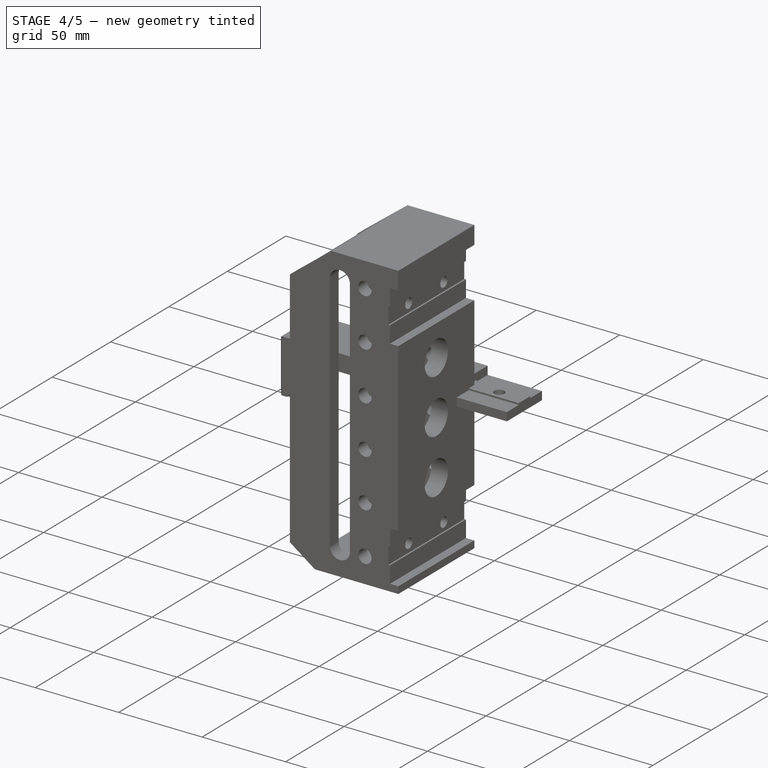
[diagram: stage 4 of 5 — iso view after this stage's code; geometry added in this stage tinted green]
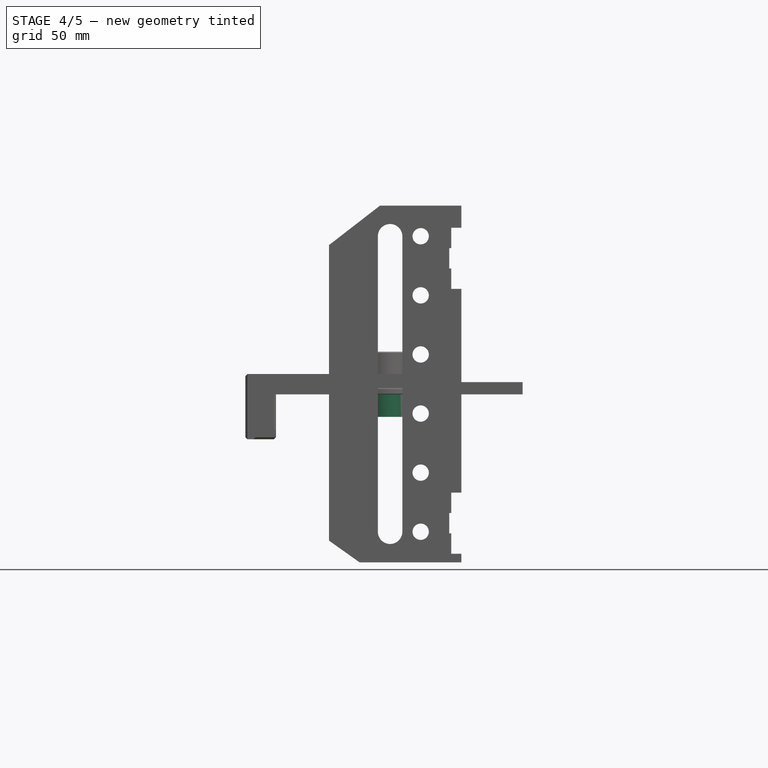
[diagram: stage 4 of 5 — front view after this stage's code; geometry added in this stage tinted green]
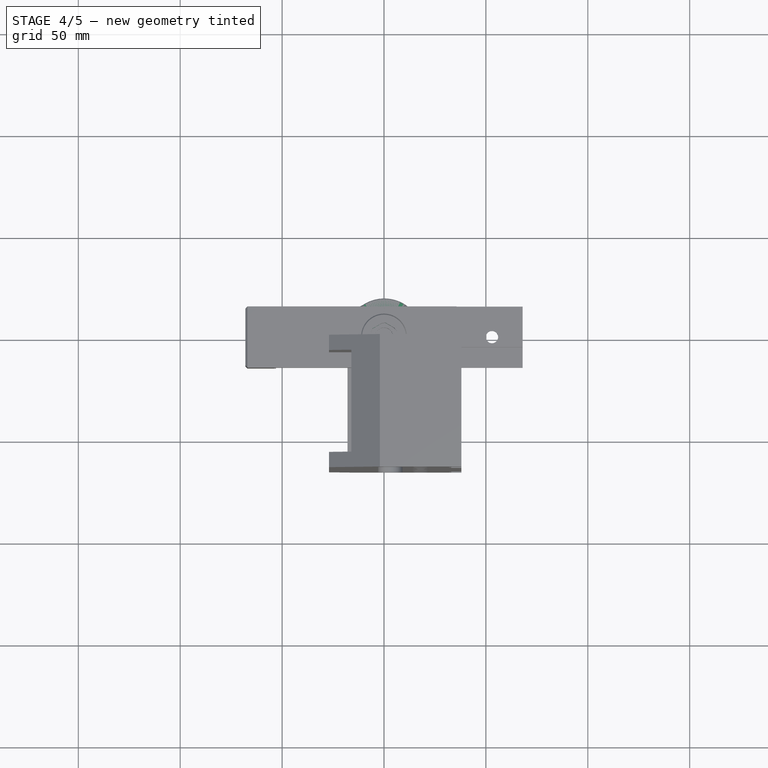
[diagram: stage 4 of 5 — top view after this stage's code; geometry added in this stage tinted green]
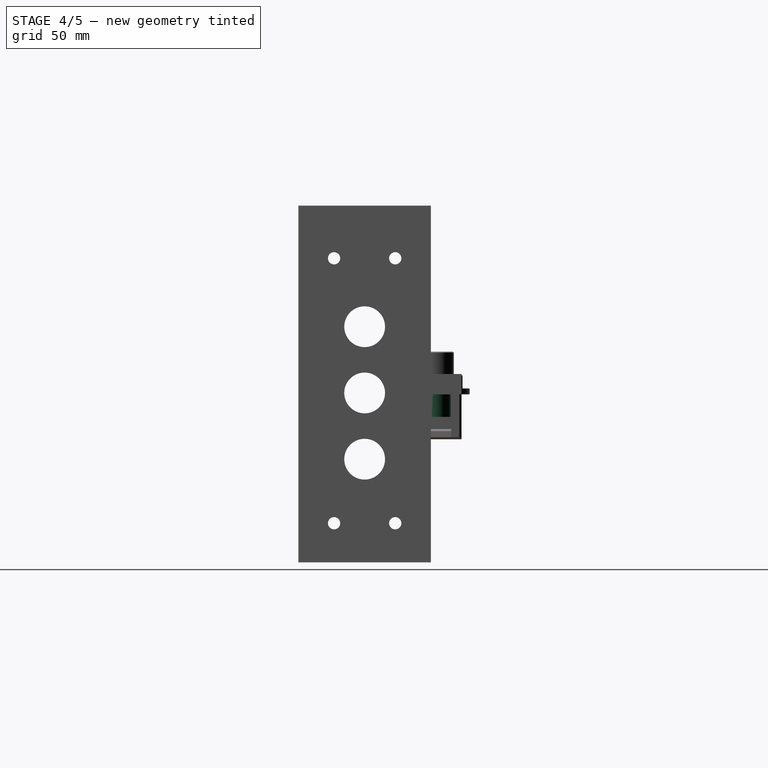
[diagram: stage 4 of 5 — right view after this stage's code; geometry added in this stage tinted green]
FEATURE [PartDesign::Body] Body010  label="Legs"
  AllowCompound = false
  Group = -> [Sketch058,Pad019,Fillet005,Fillet006]
  Origin = -> Origin010
  Tip = -> Fillet006
FEATURE [Sketcher::SketchObject] Sketch062
  ArcFitTolerance = 0
  AttachmentSupport = -> [XY_Plane013]
  FullyConstrained = true
  MakeInternals = false
  MapMode = 5
  sketch-geometry (1):
    g0: Circle CenterX=0 CenterY=0 CenterZ=0 NormalX=0 NormalY=0 NormalZ=1 AngleXU=0 Radius=15
  constraints (2):
    c: Coincident(g0,g-1)
    c: Diameter(g0) = 30
FEATURE [PartDesign::Pad] Pad023
  Direction = (0,0,1)
  Length = 10
  Length2 = 100
  Profile = -> Sketch062
  Suppressed = false
  Type = 0
FEATURE [PartDesign::Chamfer] Chamfer028
  Angle = 45
  Base = -> Pad023 [Edge3]
  BaseFeature = -> Pad023
  ChamferType = 0
  FlipDirection = false
  Size = 1
  Size2 = 1
  SupportTransform = false
  Suppressed = false
  UseAllEdges = false
FEATURE [PartDesign::Chamfer] Chamfer026
  Angle = 45
  Base = -> Chamfer028 [Edge3]
  BaseFeature = -> Chamfer028
  ChamferType = 0
  FlipDirection = false
  Size = 1
  Size2 = 1
  SupportTransform = false
  Suppressed = false
  UseAllEdges = false
FEATURE [PartDesign::Plane] DatumPlane003
  AttachmentOffset = pos=(15,0,0) rot=(0,1,0;1.5708rad)
  AttachmentSupport = -> [Chamfer026]
  Length = 60
  MapMode = 45
  Placement = pos=(15,1e-16,5) rot=(0,1,0;1.5708rad)
  ResizeMode = 0
  Width = 60
FEATURE [Sketcher::SketchObject] Sketch064
  ArcFitTolerance = 0
  AttachmentSupport = -> [DatumPlane003]
  ExternalGeometry = -> [Chamfer026]
  FullyConstrained = true
  MakeInternals = false
  MapMode = 5
  Placement = pos=(15,1e-16,5) rot=(0,1,0;1.5708rad)
  sketch-geometry (4):
    g0: LineSegment StartX=-5 StartY=6 StartZ=0 EndX=5 EndY=6 EndZ=0
    g1: LineSegment StartX=5 StartY=6 StartZ=0 EndX=5 EndY=-6 EndZ=0
    g2: LineSegment StartX=5 StartY=-6 StartZ=0 EndX=-5 EndY=-6 EndZ=0
    g3: LineSegment StartX=-5 StartY=-6 StartZ=0 EndX=-5 EndY=6 EndZ=0
  constraints (12):
    c: Coincident(g0,g1)
    c: Coincident(g1,g2)
    c: Coincident(g2,g3)
    c: Coincident(g3,g0)
    c: Horizontal(g0)
    c: Horizontal(g2)
    c: Vertical(g1)
    c: Vertical(g3)
    c: PointOnObject(g0,g-3)
    c: PointOnObject(g1,g-4)
    c: DistanceY(g3,g3) = 12
    c: DistanceY(g-1,g0) = 6
FEATURE [PartDesign::Pocket] Pocket039
  BaseFeature = -> Chamfer026
  Direction = (-1,0,-2e-16)
  Length = 5
  Length2 = 100
  Profile = -> Sketch064
  Suppressed = false
  Type = 0
FEATURE [PartDesign::Fillet] Fillet007
  Base = -> Pocket039 [Edge2,Edge4]
  BaseFeature = -> Pocket039
  Radius = 1.75
  SupportTransform = false
  Suppressed = false
  UseAllEdges = false
FEATURE [PartDesign::PolarPattern] PolarPattern001
  Angle = 360
  Axis = -> Z_Axis013
  BaseFeature = -> Fillet007
  Mode = 0
  Occurrences = 3
  Offset = 120
  Originals = -> [Fillet007,Pocket039]
  Suppressed = false
  TransformMode = 0
FEATURE [Sketcher::SketchObject] Sketch065
  ArcFitTolerance = 0
  AttachmentSupport = -> [PolarPattern001]
  FullyConstrained = true
  MakeInternals = false
  MapMode = 5
  Placement = pos=(0,0,10) rot=(0,0,1;0rad)
  sketch-geometry (1):
    g0: Circle CenterX=0 CenterY=0 CenterZ=0 NormalX=0 NormalY=0 NormalZ=1 AngleXU=0 Radius=9.75
  constraints (2):
    c: Coincident(g0,g-1)
    c: Radius(g0) = 9.75
FEATURE [PartDesign::Pad] Pad024
  BaseFeature = -> PolarPattern001
  Direction = (0,0,1)
  Length = 11
  Length2 = 100
  Profile = -> Sketch065
  Suppressed = false
  Type = 0
FEATURE [Sketcher::SketchObject] Sketch066
  ArcFitTolerance = 0
  AttachmentSupport = -> [Pad024]
  FullyConstrained = true
  MakeInternals = false
  MapMode = 5
  Placement = pos=(0,0,21) rot=(0,0,1;0rad)
  sketch-geometry (7):
    g0: LineSegment StartX=0 StartY=-7.21688 StartZ=0 EndX=6.25 EndY=-3.60844 EndZ=0
    g1: LineSegment StartX=6.25 StartY=-3.60844 StartZ=0 EndX=6.25 EndY=3.60844 EndZ=0
    g2: LineSegment StartX=6.25 StartY=3.60844 StartZ=0 EndX=-1.8e-15 EndY=7.21688 EndZ=0
    g3: LineSegment StartX=-1.8e-15 StartY=7.21688 StartZ=0 EndX=-6.25 EndY=3.60844 EndZ=0
    g4: LineSegment StartX=-6.25 StartY=3.60844 StartZ=0 EndX=-6.25 EndY=-3.60844 EndZ=0
    g5: LineSegment StartX=-6.25 StartY=-3.60844 StartZ=0 EndX=0 EndY=-7.21688 EndZ=0
    g6: Circle [constr] CenterX=0 CenterY=0 CenterZ=0 NormalX=0 NormalY=0 NormalZ=1 AngleXU=0 Radius=7.21688
  constraints (16):
    c: Coincident(g0,g1)
    c: Coincident(g1,g2)
    c: Coincident(g2,g3)
    c: Coincident(g3,g4)
    c: Coincident(g4,g5)
    c: Coincident(g5,g0)
    c: Equal(g0, g1-g5) x5
    c: PointOnObject(g0,g6)
    c: PointOnObject(g1,g6)
    c: PointOnObject(g2,g6)
    c: PointOnObject(g3,g6)
    c: PointOnObject(g4,g6)
    c: PointOnObject(g5,g6)
    c: Coincident(g6,g-1)
    c: PointOnObject(g5,g-2)
    c: DistanceX(g4,g0) = 12.5
FEATURE [PartDesign::Pocket] Pocket040
  BaseFeature = -> Pad024
  Direction = (0,0,-1)
  Length = 6.5
  Length2 = 100
  Profile = -> Sketch066
  Suppressed = false
  Type = 0
FEATURE [Sketcher::SketchObject] Sketch067
  ArcFitTolerance = 0
  AttachmentSupport = -> [Pocket040]
  FullyConstrained = true
  MakeInternals = false
  MapMode = 5
  Placement = pos=(0,0,21) rot=(0,0,1;0rad)
  sketch-geometry (1):
    g0: Circle CenterX=0 CenterY=0 CenterZ=0 NormalX=0 NormalY=0 NormalZ=1 AngleXU=0 Radius=4.5
  constraints (2):
    c: Coincident(g0,g-1)
    c: Radius(g0) = 4.5
FEATURE [PartDesign::Pocket] Pocket041
  BaseFeature = -> Pocket040
  Direction = (0,0,-1)
  Length = 5
  Length2 = 100
  Profile = -> Sketch067
  Suppressed = false
  Type = 1
FEATURE [Sketcher::SketchObject] Sketch068
  ArcFitTolerance = 0
  AttachmentSupport = -> [XY_Plane014]
  FullyConstrained = false
  MakeInternals = false
  MapMode = 5
  sketch-geometry (1):
    g0: Circle CenterX=0.140173 CenterY=0 CenterZ=0 NormalX=0 NormalY=0 NormalZ=1 AngleXU=0 Radius=19
  constraints (2):
    c: PointOnObject(g0,g-1)
    c: Diameter(g0) = 38
FEATURE [PartDesign::Pad] Pad025
  Direction = (0,0,1)
  Length = 3
  Length2 = 100
  Profile = -> Sketch068
  Suppressed = false
  Type = 0
FEATURE [Sketcher::SketchObject] Sketch069
  ArcFitTolerance = 0
  AttachmentSupport = -> [Pad025]
  FullyConstrained = true
  MakeInternals = false
  MapMode = 5
  Placement = pos=(0,0,0) rot=(1,0,0;3.14159rad)
  sketch-geometry (1):
    g0: Circle CenterX=0 CenterY=0 CenterZ=0 NormalX=0 NormalY=0 NormalZ=1 AngleXU=0 Radius=4.5
  constraints (2):
    c: Coincident(g0,g-1)
    c: Diameter(g0) = 9
FEATURE [PartDesign::Pocket] Pocket042
  BaseFeature = -> Pad025
  Direction = (0,0,1)
  Length = 5
  Length2 = 100
  Profile = -> Sketch069
  Suppressed = false
  Type = 1
FEATURE [PartDesign::Chamfer] Chamfer029
  Angle = 45
  Base = -> Pocket042 [Edge4,Edge5]
  BaseFeature = -> Pocket042
  ChamferType = 0
  FlipDirection = false
  Size = 0.3
  Size2 = 1
  SupportTransform = false
  Suppressed = false
  UseAllEdges = false
FEATURE [PartDesign::Chamfer] Chamfer030
  Angle = 45
  Base = -> Chamfer029 [Edge2,Edge6]
  BaseFeature = -> Chamfer029
  ChamferType = 0
  FlipDirection = false
  Size = 0.3
  Size2 = 1
  SupportTransform = false
  Suppressed = false
  UseAllEdges = false
FEATURE [Sketcher::SketchObject] Sketch070
  ArcFitTolerance = 0
  AttachmentSupport = -> [Chamfer030]
  FullyConstrained = true
  MakeInternals = false
  MapMode = 5
  Placement = pos=(0,0,3) rot=(0,0,1;0rad)
  sketch-geometry (1):
    g0: Circle CenterX=0 CenterY=0 CenterZ=0 NormalX=0 NormalY=0 NormalZ=1 AngleXU=0 Radius=8.25
  constraints (2):
    c: Coincident(g0,g-1)
    c: Radius(g0) = 8.25
FEATURE [PartDesign::Pocket] Pocket043
  BaseFeature = -> Chamfer030
  Direction = (0,0,-1)
  Length = 1
  Length2 = 100
  Profile = -> Sketch070
  Suppressed = false
  Type = 0
FEATURE [PartDesign::Body] Body014  label="Washer2 for Knob3"
  AllowCompound = false
  Group = -> [Sketch068,Pad025,Sketch069,Pocket042,Chamfer029,Chamfer030,Sketch070,Pocket043]
  Origin = -> Origin014
  Tip = -> Pocket043
FEATURE [PartDesign::Chamfer] Chamfer031
  Angle = 45
  Base = -> Pocket041 [Edge32]
  BaseFeature = -> Pocket041
  ChamferType = 0
  FlipDirection = false
  Size = 0.5
  Size2 = 1
  SupportTransform = false
  Suppressed = false
  UseAllEdges = false
FEATURE [Sketcher::SketchObject] Sketch072
  ArcFitTolerance = 0
  AttachmentSupport = -> [XY_Plane015]
  ExternalGeometry = -> [Chamfer032]
  FullyConstrained = true
  MakeInternals = false
  MapMode = 5
  sketch-geometry (2):
    g0: LineSegment StartX=23.25 StartY=12.5 StartZ=0 EndX=23.25 EndY=-12.5 EndZ=0
    g1: ArcOfCircle CenterX=23.25 CenterY=-9e-16 CenterZ=0 NormalX=0 NormalY=0 NormalZ=1 AngleXU=0 Radius=12.5 StartAngle=1.5708 EndAngle=4.71239
  constraints (6):
    c: Perpendicular(g0,g1) = 1.5708
    c: Coincident(g1,g0)
    c: DistanceY(g0,g0) = 25
    c: Vertical(g0)
    c: DistanceY(g-1,g0) = 12.5
    c: DistanceX(g-1,g1) = 23.25
FEATURE [PartDesign::Pocket] Pocket044
  BaseFeature = -> Chamfer032
  Direction = (0,0,-1)
  Length = 5
  Length2 = 100
  Profile = -> Sketch072
  Reversed = true
  Suppressed = false
  Type = 1
FEATURE [PartDesign::Chamfer] Chamfer034
  Angle = 45
  Base = -> Pocket044 [Edge8,Edge10]
  BaseFeature = -> Pocket044
  ChamferType = 0
  FlipDirection = false
  Size = 1
  Size2 = 1
  SupportTransform = false
  Suppressed = false
  UseAllEdges = false
FEATURE [PartDesign::PolarPattern] PolarPattern002
  Angle = 360
  Axis = -> Sketch072 [N_Axis]
  BaseFeature = -> Chamfer034
  Mode = 0
  Occurrences = 4
  Offset = 120
  Originals = -> [Pocket044,Chamfer034]
  Suppressed = false
  TransformMode = 0
FEATURE [Sketcher::SketchObject] Sketch073
  ArcFitTolerance = 0
  AttachmentSupport = -> [PolarPattern002]
  FullyConstrained = true
  MakeInternals = false
  MapMode = 5
  Placement = pos=(0,0,0) rot=(1,0,0;3.14159rad)
  sketch-geometry (1):
    g0: Circle CenterX=0 CenterY=0 CenterZ=0 NormalX=0 NormalY=0 NormalZ=1 AngleXU=0 Radius=9.75
  constraints (2):
    c: Coincident(g0,g-1)
    c: Radius(g0) = 9.75
FEATURE [PartDesign::Pad] Pad027
  BaseFeature = -> PolarPattern002
  Direction = (0,0,-1)
  Length = 11
  Length2 = 100
  Profile = -> Sketch073
  Suppressed = false
  Type = 0
FEATURE [Sketcher::SketchObject] Sketch074
  ArcFitTolerance = 0
  AttachmentSupport = -> [Pad027]
  FullyConstrained = false
  MakeInternals = false
  MapMode = 5
  Placement = pos=(0,0,-11) rot=(1,0,0;3.14159rad)
  sketch-geometry (7):
    g0: LineSegment StartX=6.81071 StartY=-3.21462 StartZ=0 EndX=6.18929 EndY=4.29094 EndZ=0
    g1: LineSegment StartX=6.18929 StartY=4.29094 StartZ=0 EndX=-0.621415 EndY=7.50555 EndZ=0
    g2: LineSegment StartX=-0.621415 StartY=7.50555 StartZ=0 EndX=-6.81071 EndY=3.21462 EndZ=0
    g3: LineSegment StartX=-6.81071 StartY=3.21462 StartZ=0 EndX=-6.18929 EndY=-4.29094 EndZ=0
    g4: LineSegment StartX=-6.18929 StartY=-4.29094 StartZ=0 EndX=0.621415 EndY=-7.50555 EndZ=0
    g5: LineSegment StartX=0.621415 StartY=-7.50555 StartZ=0 EndX=6.81071 EndY=-3.21462 EndZ=0
    g6: Circle [constr] CenterX=0 CenterY=0 CenterZ=0 NormalX=0 NormalY=0 NormalZ=1 AngleXU=0 Radius=7.53123
  constraints (15):
    c: Coincident(g0,g1)
    c: Coincident(g1,g2)
    c: Coincident(g2,g3)
    c: Coincident(g3,g4)
    c: Coincident(g4,g5)
    c: Coincident(g5,g0)
    c: Equal(g0, g1-g5) x5
    c: PointOnObject(g0,g6)
    c: PointOnObject(g1,g6)
    c: PointOnObject(g2,g6)
    c: PointOnObject(g3,g6)
    c: PointOnObject(g4,g6)
    c: PointOnObject(g5,g6)
    c: Coincident(g6,g-1)
    c: DistanceX(g3,g0) = 13
FEATURE [PartDesign::Pocket] Pocket045
  BaseFeature = -> Pad027
  Direction = (0,0,1)
  Length = 6.5
  Length2 = 100
  Profile = -> Sketch074
  Suppressed = false
  Type = 0
FEATURE [Sketcher::SketchObject] Sketch075
  ArcFitTolerance = 0
  AttachmentSupport = -> [Pocket045]
  FullyConstrained = true
  MakeInternals = false
  MapMode = 5
  Placement = pos=(0,0,-11) rot=(1,0,0;3.14159rad)
  sketch-geometry (1):
    g0: Circle CenterX=0 CenterY=0 CenterZ=0 NormalX=0 NormalY=0 NormalZ=1 AngleXU=0 Radius=4.5
  constraints (2):
    c: Coincident(g0,g-1)
    c: Radius(g0) = 4.5
FEATURE [PartDesign::Pocket] Pocket046
  BaseFeature = -> Pocket045
  Direction = (0,0,1)
  Length = 5
  Length2 = 100
  Profile = -> Sketch075
  Suppressed = false
  Type = 1
FEATURE [PartDesign::Chamfer] Chamfer035
  Angle = 45
  Base = -> Pocket046 [Edge58]
  BaseFeature = -> Pocket046
  ChamferType = 0
  FlipDirection = false
  Size = 1
  Size2 = 1
  SupportTransform = false
  Suppressed = false
  UseAllEdges = false
FEATURE [PartDesign::Fillet] Fillet008
  Base = -> Chamfer035 [Edge36,Edge31,Edge32,Edge34,Edge38,Edge42,Edge44,Edge40]
  BaseFeature = -> Chamfer035
  Radius = 1.5
  SupportTransform = false
  Suppressed = false
  UseAllEdges = false
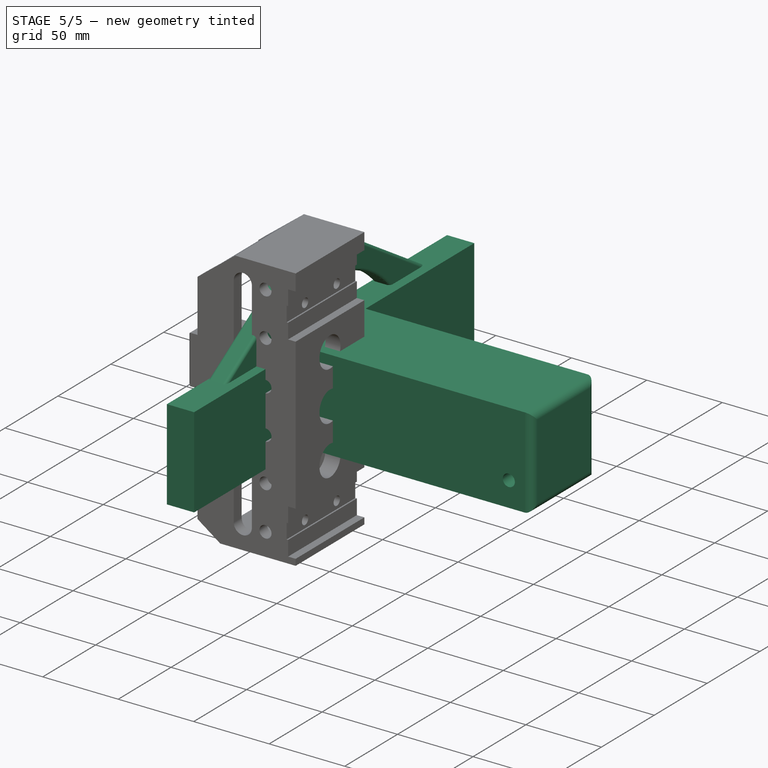
[diagram: stage 5 of 5 — iso view after this stage's code; geometry added in this stage tinted green]
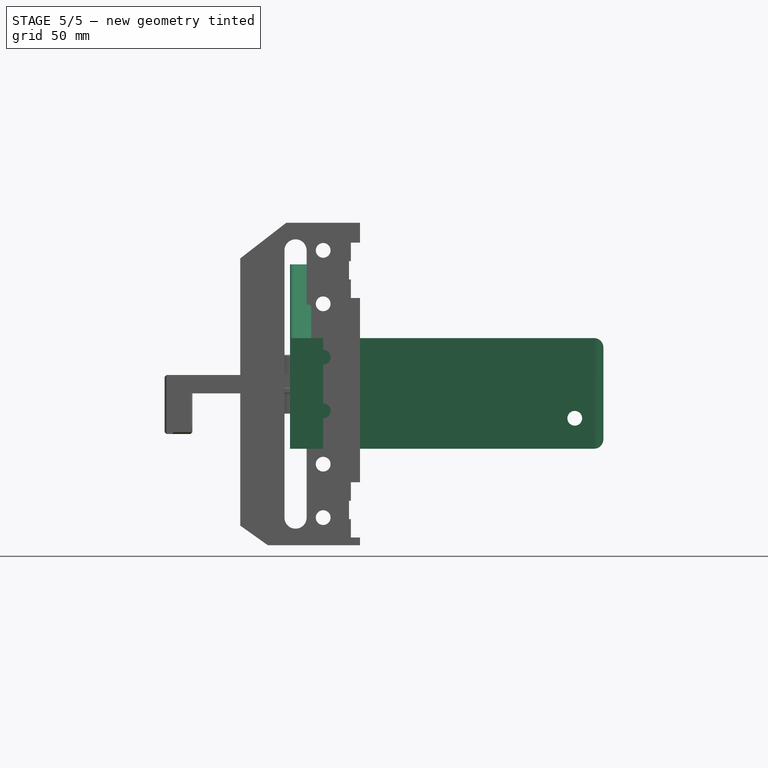
[diagram: stage 5 of 5 — front view after this stage's code; geometry added in this stage tinted green]
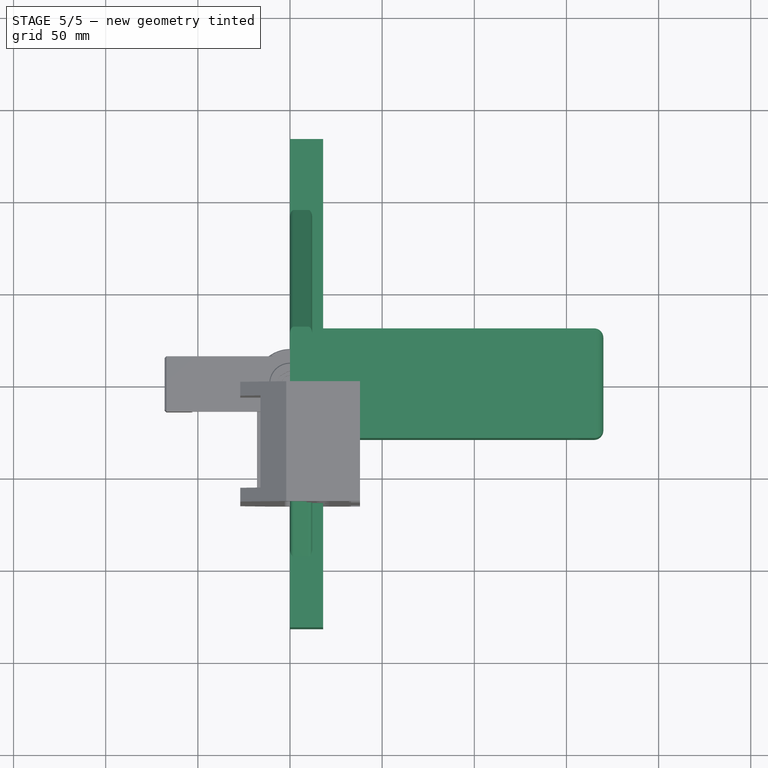
[diagram: stage 5 of 5 — top view after this stage's code; geometry added in this stage tinted green]
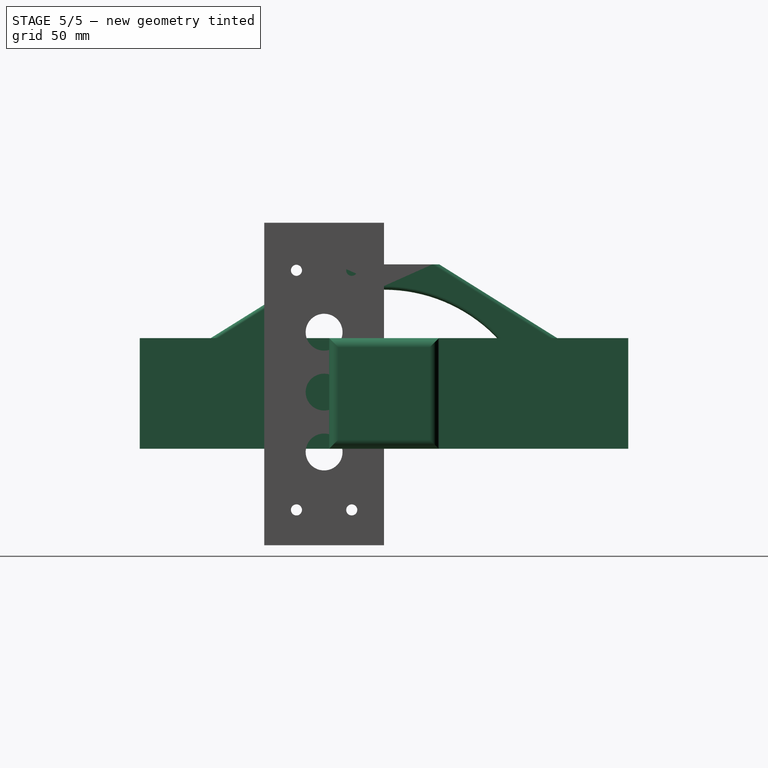
[diagram: stage 5 of 5 — right view after this stage's code; geometry added in this stage tinted green]
FEATURE [Sketcher::SketchObject] Sketch041
  ArcFitTolerance = 0
  AttachmentSupport = -> [XY_Plane007]
  FullyConstrained = true
  MakeInternals = false
  MapMode = 5
  sketch-geometry (1):
    g0: Circle CenterX=0 CenterY=0 CenterZ=0 NormalX=0 NormalY=0 NormalZ=1 AngleXU=0 Radius=19
  constraints (2):
    c: Coincident(g0,g-1)
    c: Diameter(g0) = 38
FEATURE [PartDesign::Pad] Pad013
  Direction = (0,0,1)
  Length = 3
  Length2 = 100
  Profile = -> Sketch041
  Suppressed = false
  Type = 0
FEATURE [Sketcher::SketchObject] Sketch043
  ArcFitTolerance = 0
  AttachmentSupport = -> [XY_Plane008]
  FullyConstrained = false
  MakeInternals = false
  MapMode = 5
  sketch-geometry (1):
    g0: Circle CenterX=0.140173 CenterY=0 CenterZ=0 NormalX=0 NormalY=0 NormalZ=1 AngleXU=0 Radius=19
  constraints (2):
    c: PointOnObject(g0,g-1)
    c: Diameter(g0) = 38
FEATURE [PartDesign::Pad] Pad014
  Direction = (0,0,1)
  Length = 3
  Length2 = 100
  Profile = -> Sketch043
  Suppressed = false
  Type = 0
FEATURE [Sketcher::SketchObject] Sketch044
  ArcFitTolerance = 0
  AttachmentSupport = -> [Pad014]
  FullyConstrained = true
  MakeInternals = false
  MapMode = 5
  Placement = pos=(0,0,0) rot=(1,0,0;3.14159rad)
  sketch-geometry (1):
    g0: Circle CenterX=0 CenterY=0 CenterZ=0 NormalX=0 NormalY=0 NormalZ=1 AngleXU=0 Radius=4.5
  constraints (2):
    c: Coincident(g0,g-1)
    c: Diameter(g0) = 9
FEATURE [PartDesign::Pocket] Pocket030
  BaseFeature = -> Pad014
  Direction = (0,0,1)
  Length = 5
  Length2 = 100
  Profile = -> Sketch044
  Suppressed = false
  Type = 1
FEATURE [PartDesign::Chamfer] Chamfer014
  Angle = 45
  Base = -> Pocket030 [Edge4,Edge5]
  BaseFeature = -> Pocket030
  ChamferType = 0
  FlipDirection = false
  Size = 0.3
  Size2 = 1
  SupportTransform = false
  Suppressed = false
  UseAllEdges = false
FEATURE [PartDesign::Chamfer] Chamfer015
  Angle = 45
  Base = -> Chamfer014 [Edge2,Edge6]
  BaseFeature = -> Chamfer014
  ChamferType = 0
  FlipDirection = false
  Size = 0.3
  Size2 = 1
  SupportTransform = false
  Suppressed = false
  UseAllEdges = false
FEATURE [Sketcher::SketchObject] Sketch052
  ArcFitTolerance = 0
  AttachmentSupport = -> [Pad013]
  FullyConstrained = true
  MakeInternals = false
  MapMode = 5
  Placement = pos=(0,0,3) rot=(0,0,1;0rad)
  sketch-geometry (4):
    g0: LineSegment StartX=-4.5 StartY=9 StartZ=0 EndX=4.5 EndY=9 EndZ=0
    g1: LineSegment StartX=4.5 StartY=9 StartZ=0 EndX=4.5 EndY=6 EndZ=0
    g2: LineSegment StartX=4.5 StartY=6 StartZ=0 EndX=-4.5 EndY=6 EndZ=0
    g3: LineSegment StartX=-4.5 StartY=6 StartZ=0 EndX=-4.5 EndY=9 EndZ=0
  constraints (11):
    c: Coincident(g0,g1)
    c: Coincident(g1,g2)
    c: Coincident(g2,g3)
    c: Coincident(g3,g0)
    c: Horizontal(g2)
    c: Vertical(g1)
    c: Vertical(g3)
    c: DistanceX(g2,g2) = 9
    c: Symmetric(g0,g0,g-2)
    c: DistanceY(g3,g3) = 3
    c: DistanceY(g-1,g2) = 6
FEATURE [PartDesign::Pad] Pad017
  BaseFeature = -> Pad013
  Direction = (0,0,1)
  Length = 2
  Length2 = 100
  Profile = -> Sketch052
  Suppressed = false
  Type = 0
FEATURE [PartDesign::Fillet] Fillet
  Base = -> Pad017 [Edge11,Edge13,Edge8,Edge9]
  BaseFeature = -> Pad017
  Radius = 0.5
  SupportTransform = false
  Suppressed = false
  UseAllEdges = false
FEATURE [PartDesign::Mirrored] Mirrored002
  BaseFeature = -> Fillet
  MirrorPlane = -> Sketch052 [H_Axis]
  Originals = -> [Pad017,Fillet]
  Suppressed = false
  TransformMode = 0
FEATURE [Sketcher::SketchObject] Sketch053
  ArcFitTolerance = 0
  AttachmentSupport = -> [Mirrored002]
  FullyConstrained = true
  MakeInternals = false
  MapMode = 5
  Placement = pos=(0,0,3) rot=(0,0,1;0rad)
  sketch-geometry (4):
    g0: LineSegment StartX=-4.5 StartY=4.5 StartZ=0 EndX=4.5 EndY=4.5 EndZ=0
    g1: LineSegment StartX=4.5 StartY=4.5 StartZ=0 EndX=4.5 EndY=-4.5 EndZ=0
    g2: LineSegment StartX=4.5 StartY=-4.5 StartZ=0 EndX=-4.5 EndY=-4.5 EndZ=0
    g3: LineSegment StartX=-4.5 StartY=-4.5 StartZ=0 EndX=-4.5 EndY=4.5 EndZ=0
  constraints (11):
    c: Coincident(g0,g1)
    c: Coincident(g1,g2)
    c: Coincident(g2,g3)
    c: Coincident(g3,g0)
    c: Horizontal(g0)
    c: Horizontal(g2)
    c: Vertical(g1)
    c: Vertical(g3)
    c: DistanceX(g2,g2) = 9
    c: Equal(g2,g1)
    c: Symmetric(g0,g1,g-1)
FEATURE [PartDesign::Pocket] Pocket034
  BaseFeature = -> Mirrored002
  Direction = (0,0,-1)
  Length = 5
  Length2 = 100
  Profile = -> Sketch053
  Suppressed = false
  Type = 0
FEATURE [PartDesign::Fillet] Fillet003
  Base = -> Pocket034 [Edge44,Edge50,Edge48,Edge46]
  BaseFeature = -> Pocket034
  Radius = 0.5
  SupportTransform = false
  Suppressed = false
  UseAllEdges = false
FEATURE [PartDesign::Chamfer] Chamfer019
  Angle = 45
  Base = -> Fillet003 [Edge47]
  BaseFeature = -> Fillet003
  ChamferType = 0
  FlipDirection = false
  Size = 0.5
  Size2 = 1
  SupportTransform = false
  Suppressed = false
  UseAllEdges = false
FEATURE [PartDesign::Chamfer] Chamfer020
  Angle = 45
  Base = -> Chamfer019 [Edge3]
  BaseFeature = -> Chamfer019
  ChamferType = 0
  FlipDirection = false
  Size = 0.5
  Size2 = 1
  SupportTransform = false
  Suppressed = false
  UseAllEdges = false
FEATURE [PartDesign::Chamfer] Chamfer021
  Angle = 45
  Base = -> Chamfer020 [Edge36,Edge40,Edge43,Edge39,Edge41,Edge37,Edge38,Edge42]
  BaseFeature = -> Chamfer020
  ChamferType = 0
  FlipDirection = false
  Size = 0.25
  Size2 = 1
  SupportTransform = false
  Suppressed = false
  UseAllEdges = false
FEATURE [PartDesign::Chamfer] Chamfer022
  Angle = 45
  Base = -> Chamfer021 [Edge29,Edge36,Edge43,Edge37,Edge42,Edge33,Edge31,Edge39]
  BaseFeature = -> Chamfer021
  ChamferType = 0
  FlipDirection = false
  Size = 0.25
  Size2 = 1
  SupportTransform = false
  Suppressed = false
  UseAllEdges = false
FEATURE [Sketcher::SketchObject] Sketch057
  ArcFitTolerance = 0
  AttachmentSupport = -> [Chamfer015]
  FullyConstrained = true
  MakeInternals = false
  MapMode = 5
  Placement = pos=(0,0,3) rot=(0,0,1;0rad)
  sketch-geometry (1):
    g0: Circle CenterX=0 CenterY=0 CenterZ=0 NormalX=0 NormalY=0 NormalZ=1 AngleXU=0 Radius=11.25
  constraints (2):
    c: Coincident(g0,g-1)
    c: Radius(g0) = 11.25
FEATURE [PartDesign::Pocket] Pocket037
  BaseFeature = -> Chamfer015
  Direction = (0,0,-1)
  Length = 1
  Length2 = 100
  Profile = -> Sketch057
  Suppressed = false
  Type = 0
FEATURE [PartDesign::Body] Body008  label="Washer2"
  AllowCompound = false
  Group = -> [Sketch043,Pad014,Sketch044,Pocket030,Chamfer014,Chamfer015,Sketch057,Pocket037]
  Origin = -> Origin008
  Tip = -> Pocket037
FEATURE [Sketcher::SketchObject] Sketch058
  ArcFitTolerance = 0
  AttachmentSupport = -> [YZ_Plane010]
  FullyConstrained = true
  MakeInternals = false
  MapMode = 5
  Placement = pos=(0,0,0) rot=(0.57735,0.57735,0.57735;2.0944rad)
  sketch-geometry (8):
    g0: LineSegment StartX=-110 StartY=0 StartZ=0 EndX=-110 EndY=20 EndZ=0
    g1: LineSegment StartX=-110 StartY=20 StartZ=0 EndX=-30 EndY=70 EndZ=0
    g2: LineSegment StartX=-30 StartY=70 StartZ=0 EndX=30 EndY=70 EndZ=0
    g3: LineSegment StartX=30 StartY=70 StartZ=0 EndX=110 EndY=20 EndZ=0
    g4: LineSegment StartX=110 StartY=20 StartZ=0 EndX=110 EndY=0 EndZ=0
    g5: LineSegment StartX=-110 StartY=0 StartZ=0 EndX=-80 EndY=-2.49e-14 EndZ=0
    g6: LineSegment StartX=110 StartY=0 StartZ=0 EndX=80 EndY=-7.1e-15 EndZ=0
    g7: ArcOfCircle CenterX=1e-15 CenterY=-28.7228 CenterZ=0 NormalX=0 NormalY=0 NormalZ=1 AngleXU=0 Radius=85 StartAngle=0.344701 EndAngle=2.79689
  constraints (24):
    c: PointOnObject(g0,g-1)
    c: Vertical(g0)
    c: Coincident(g0,g1)
    c: Coincident(g1,g2)
    c: Coincident(g2,g3)
    c: Coincident(g3,g4)
    c: PointOnObject(g4,g-1)
    c: Vertical(g4)
    c: DistanceY(g4,g2) = 70
    c: DistanceY(g0,g0) = 20
    c: DistanceY(g4,g4) = 20
    c: DistanceX(g2,g2) = 60
    c: Symmetric(g1,g2,g-2)
    c: Equal(g1,g3)
    c: DistanceX(g1,g1) = 80
    c: Coincident(g5,g0)
    c: PointOnObject(g5,g-1)
    c: Coincident(g6,g4)
    c: PointOnObject(g6,g-1)
    c: DistanceX(g6,g6) = 30
    c: Equal(g5,g6)
    c: Coincident(g7,g5)
    c: Coincident(g7,g6)
    c: Radius(g7) = 85
FEATURE [PartDesign::Pad] Pad019
  Direction = (1,0,0)
  Length = 12
  Length2 = 100
  Placement = pos=(0,0,0) rot=(0.57735,0.57735,0.57735;2.0944rad)
  Profile = -> Sketch058
  Suppressed = false
  Type = 0
FEATURE [Sketcher::SketchObject] Sketch059
  ArcFitTolerance = 0
  AttachmentSupport = -> [YZ_Plane011]
  FullyConstrained = true
  MakeInternals = false
  MapMode = 5
  Placement = pos=(0,0,0) rot=(0.57735,0.57735,0.57735;2.0944rad)
  sketch-geometry (4):
    g0: LineSegment StartX=-132.5 StartY=30 StartZ=0 EndX=132.5 EndY=30 EndZ=0
    g1: LineSegment StartX=132.5 StartY=30 StartZ=0 EndX=132.5 EndY=-30 EndZ=0
    g2: LineSegment StartX=132.5 StartY=-30 StartZ=0 EndX=-132.5 EndY=-30 EndZ=0
    g3: LineSegment StartX=-132.5 StartY=-30 StartZ=0 EndX=-132.5 EndY=30 EndZ=0
  constraints (11):
    c: Coincident(g0,g1)
    c: Coincident(g1,g2)
    c: Coincident(g2,g3)
    c: Coincident(g3,g0)
    c: Horizontal(g0)
    c: Horizontal(g2)
    c: Vertical(g1)
    c: Vertical(g3)
    c: DistanceX(g2,g2) = 265
    c: DistanceY(g3,g3) = 60
    c: Symmetric(g1,g0,g-1)
FEATURE [PartDesign::Pad] Pad020
  Direction = (1,0,0)
  Length = 18
  Length2 = 100
  Placement = pos=(0,0,0) rot=(0.57735,0.57735,0.57735;2.0944rad)
  Profile = -> Sketch059
  Suppressed = false
  Type = 0
FEATURE [PartDesign::Body] Body011  label="Cross Support"
  AllowCompound = false
  Group = -> [Sketch059,Pad020]
  Origin = -> Origin011
  Tip = -> Pad020
FEATURE [Sketcher::SketchObject] Sketch060
  ArcFitTolerance = 0
  AttachmentSupport = -> [YZ_Plane012]
  FullyConstrained = true
  MakeInternals = false
  MapMode = 5
  Placement = pos=(0,0,0) rot=(0.57735,0.57735,0.57735;2.0944rad)
  sketch-geometry (4):
    g0: LineSegment StartX=-29.75 StartY=30 StartZ=0 EndX=29.75 EndY=30 EndZ=0
    g1: LineSegment StartX=29.75 StartY=30 StartZ=0 EndX=29.75 EndY=-30 EndZ=0
    g2: LineSegment StartX=29.75 StartY=-30 StartZ=0 EndX=-29.75 EndY=-30 EndZ=0
    g3: LineSegment StartX=-29.75 StartY=-30 StartZ=0 EndX=-29.75 EndY=30 EndZ=0
  constraints (11):
    c: Coincident(g0,g1)
    c: Coincident(g1,g2)
    c: Coincident(g2,g3)
    c: Coincident(g3,g0)
    c: Horizontal(g0)
    c: Horizontal(g2)
    c: Vertical(g1)
    c: Vertical(g3)
    c: DistanceY(g1,g1) = 60
    c: DistanceX(g0,g0) = 59.5
    c: Symmetric(g0,g1,g-1)
FEATURE [PartDesign::Pad] Pad021
  Direction = (1,0,0)
  Length = 170
  Length2 = 100
  Placement = pos=(0,0,0) rot=(0.57735,0.57735,0.57735;2.0944rad)
  Profile = -> Sketch060
  Suppressed = false
  Type = 0
FEATURE [PartDesign::Fillet] Fillet004
  Base = -> Pad021 [Edge7,Edge4,Edge10,Edge12]
  BaseFeature = -> Pad021
  Placement = pos=(0,0,0) rot=(0.57735,0.57735,0.57735;2.0944rad)
  Radius = 5
  SupportTransform = false
  Suppressed = false
  UseAllEdges = false
FEATURE [Sketcher::SketchObject] Sketch061
  ArcFitTolerance = 0
  AttachmentSupport = -> [Fillet004]
  ExternalGeometry = -> [Fillet004]
  FullyConstrained = true
  MakeInternals = false
  MapMode = 5
  Placement = pos=(6.5e-15,29.75,0) rot=(0.57735,0.57735,0.57735;4.18879rad)
  sketch-geometry (1):
    g0: Circle CenterX=-13.5 CenterY=154.5 CenterZ=0 NormalX=0 NormalY=0 NormalZ=1 AngleXU=0 Radius=4
  constraints (3):
    c: Diameter(g0) = 8
    c: DistanceX(g-4,g0) = 16.5
    c: DistanceY(g0,g-3) = 15.5
FEATURE [PartDesign::Pocket] Pocket038
  BaseFeature = -> Fillet004
  Direction = (0,-1,0)
  Length = 5
  Length2 = 100
  Placement = pos=(0,0,0) rot=(0.57735,0.57735,0.57735;2.0944rad)
  Profile = -> Sketch061
  Suppressed = false
  Type = 1
FEATURE [PartDesign::Body] Body012  label="Upright"
  AllowCompound = false
  Group = -> [Sketch060,Pad021,Fillet004,Sketch061,Pocket038]
  Origin = -> Origin012
  Tip = -> Pocket038
FEATURE [PartDesign::Fillet] Fillet005
  Base = -> Pad019 [Edge21,Edge22]
  BaseFeature = -> Pad019
  Placement = pos=(0,0,0) rot=(0.57735,0.57735,0.57735;2.0944rad)
  Radius = 2
  SupportTransform = false
  Suppressed = false
  UseAllEdges = false
FEATURE [PartDesign::Fillet] Fillet006
  Base = -> Fillet005 [Edge22,Edge16,Edge19,Edge25,Edge17,Edge23,Edge14,Edge20]
  BaseFeature = -> Fillet005
  Placement = pos=(0,0,0) rot=(0.57735,0.57735,0.57735;2.0944rad)
  Radius = 2
  SupportTransform = false
  Suppressed = false
  UseAllEdges = false
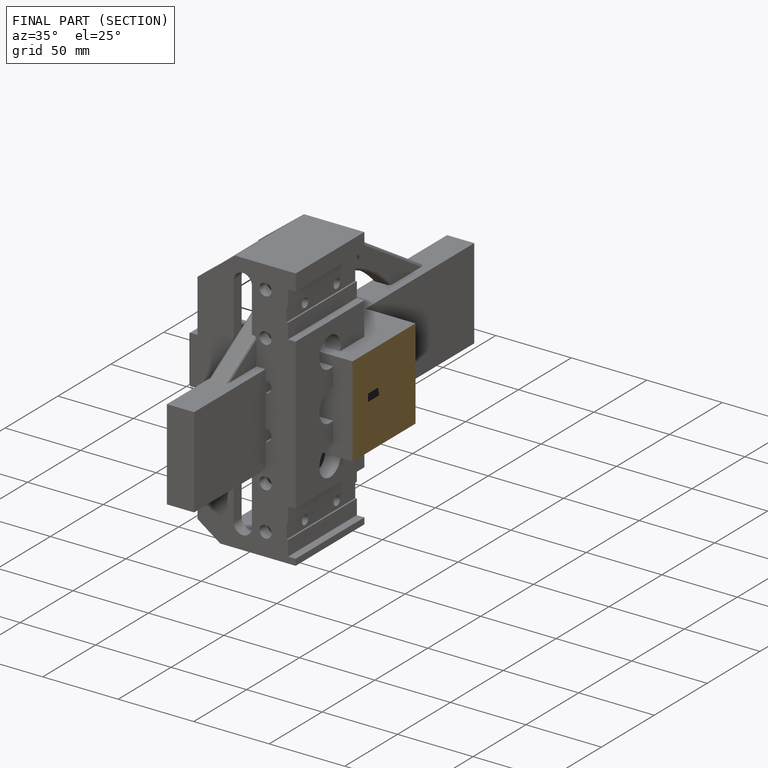
[diagram: finished part — half-section view (interior)]
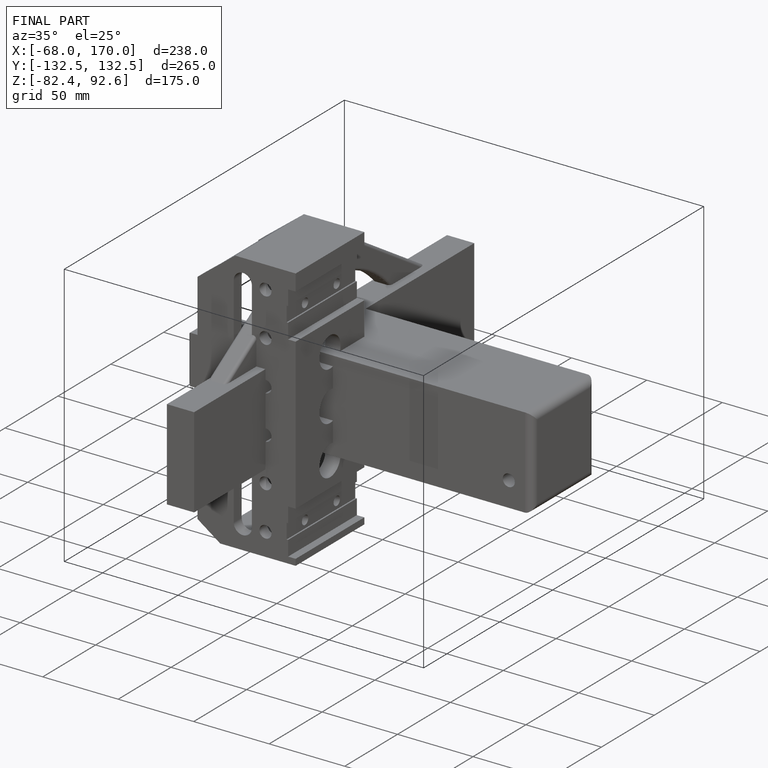
[diagram: finished part — iso view with bounding-box wireframe]
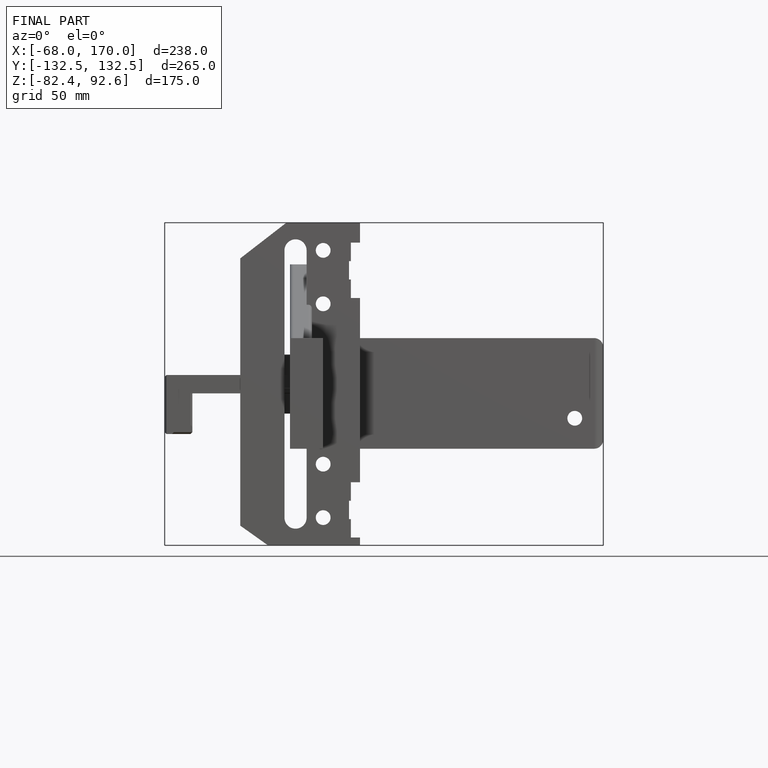
[diagram: finished part — front view with bounding-box wireframe]
